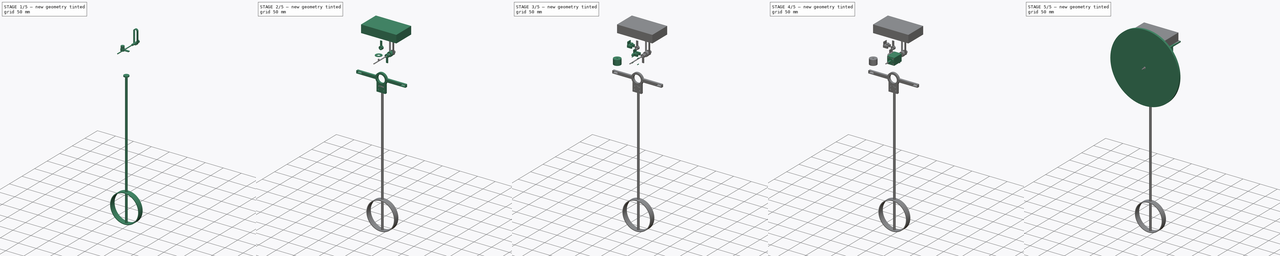
[diagram: build sequence overview — one tinted view per stage of 5, left to right]
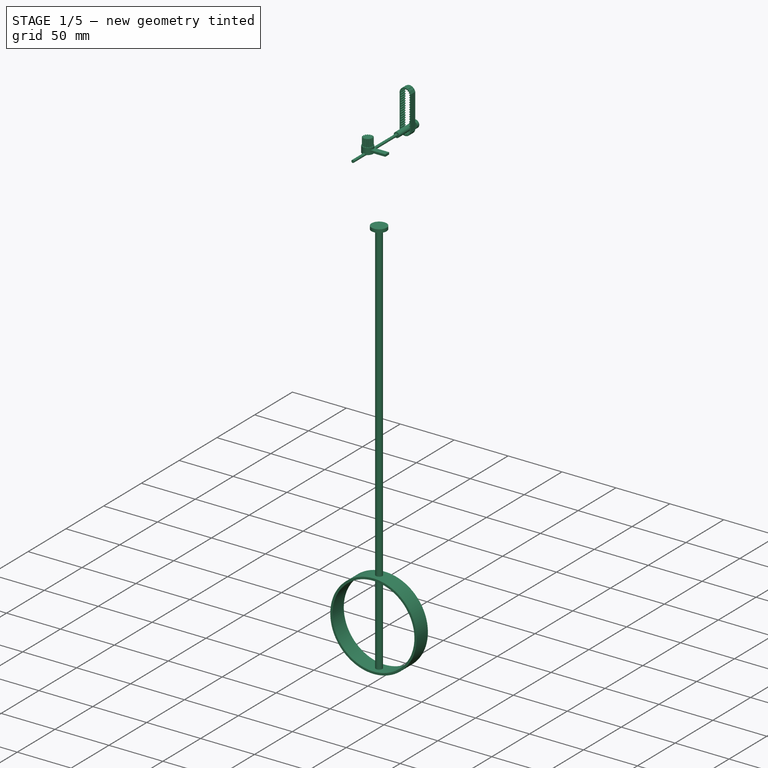
[diagram: stage 1 of 5 — iso view after this stage's code; geometry added in this stage tinted green]
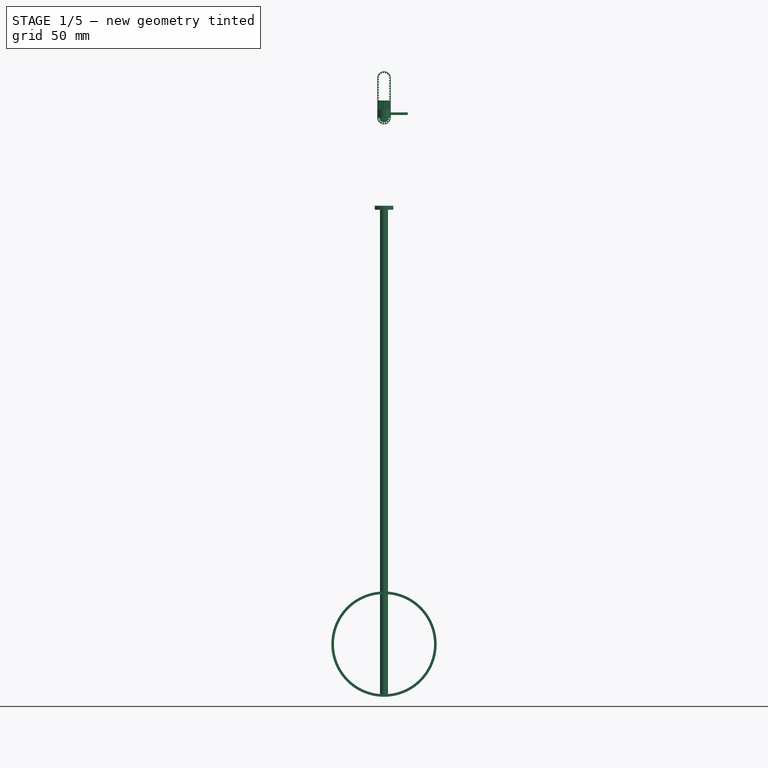
[diagram: stage 1 of 5 — front view after this stage's code; geometry added in this stage tinted green]
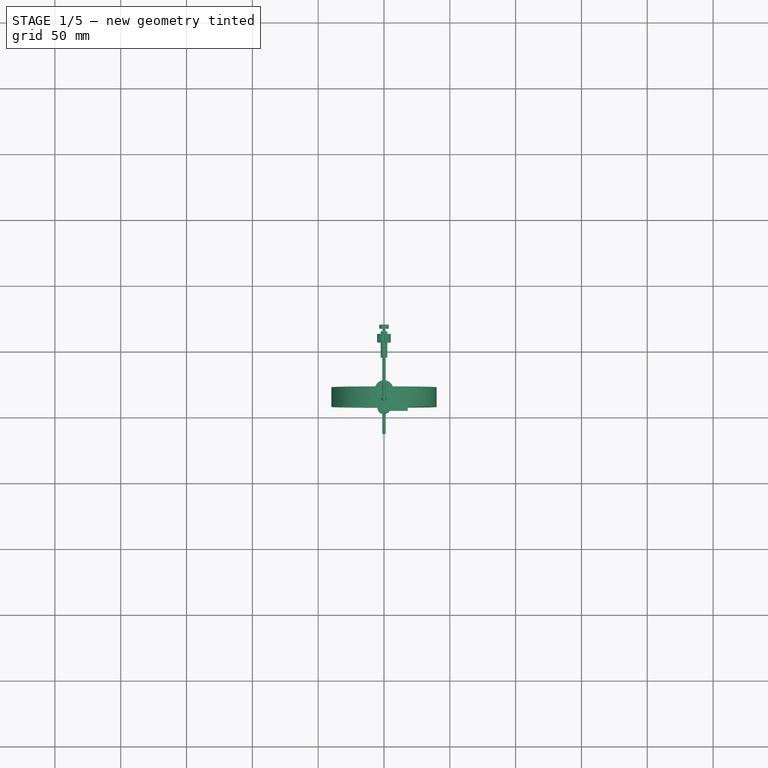
[diagram: stage 1 of 5 — top view after this stage's code; geometry added in this stage tinted green]
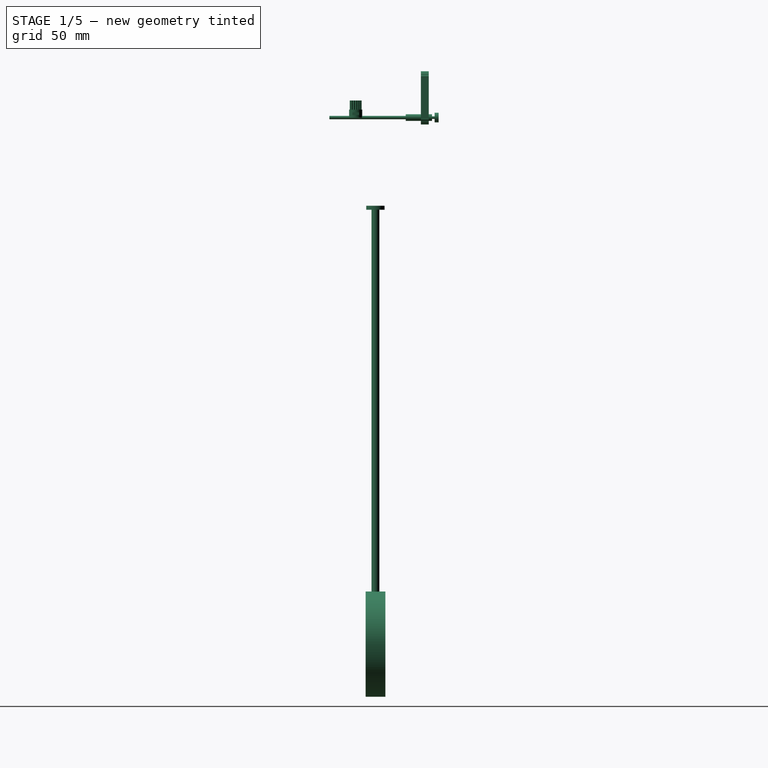
[diagram: stage 1 of 5 — right view after this stage's code; geometry added in this stage tinted green]
FCSTD DOCUMENT  (FreeCAD 0.21R33492 (Git))
Label: Clock
License: All rights reserved
LicenseURL: http://en.wikipedia.org/wiki/All_rights_reserved
objects: Part::Cylinder×24, Sketcher::SketchObject×15, Part::Extrusion×12, Part::MultiFuse×11, Part::Cut×8, Part::FeaturePython×6, Part::Box×5, App::DocumentObjectGroup×4, Part::Revolution×3, Part::Feature×1, Part::MultiCommon×1, Part::Mirroring×1
note: 87 computed .brp shape members not serialized (recipe doc carries the construction recipe); baked Part::Feature solids carry a one-line shape summary decoded from their .brp

FEATURE [Part::Box] Box002  label="Cube002"
  AttacherType = Attacher::AttachEngine3D
  Height = 2
  Length = 18
  Placement = pos=(0,-2.5,2) rot=(0,0,1;0rad)
  Width = 5
FEATURE [Part::Cylinder] Cylinder017
  Angle = 360
  AttacherType = Attacher::AttachEngine3D
  FirstAngle = 0
  Height = 6
  Radius = 5
  SecondAngle = 0
FEATURE [Part::Cylinder] Cylinder018
  Angle = 360
  AttacherType = Attacher::AttachEngine3D
  FirstAngle = 0
  Height = 8
  Radius = 2.5
  SecondAngle = 0
FEATURE [Part::Cylinder] Cylinder019
  Angle = 360
  AttacherType = Attacher::AttachEngine3D
  FirstAngle = 0
  Height = 5
  Placement = pos=(0,0,3) rot=(0,-1,0;1.5708rad)
  Radius = 1
  SecondAngle = 0
FEATURE [Part::MultiFuse] Fusion009
  Shapes = -> [Cylinder018,Cylinder019]
FEATURE [Part::FeaturePython] TimingGear  # WARN: FeaturePython — macro-defined, semantics opaque (R4)
  AttacherType = Attacher::AttachEngine3D
  Placement = pos=(0,0,6) rot=(0,0,1;0rad)
  h = 0.75
  height = 7
  offset = 0.4
  pitch = 2
  r0 = 0.555
  r1 = 1
  rs = 0.15
  teeth = 15
  type = 0
  u = 0.254
  version = 0.0.4
FEATURE [Sketcher::SketchObject] Sketch021  label="MinuteShaftShape"
  FullyConstrained = true
  Placement = pos=(0,0,0) rot=(0.57735,0.57735,0.57735;2.0944rad)
  sketch-geometry (8):
    g0: LineSegment StartX=-20 StartY=0 StartZ=0 EndX=-20 EndY=1.25 EndZ=0
    g1: LineSegment StartX=-20 StartY=1.25 StartZ=0 EndX=38 EndY=1.25 EndZ=0
    g2: LineSegment StartX=38 StartY=1.25 StartZ=0 EndX=38 EndY=2.5 EndZ=0
    g3: LineSegment StartX=38 StartY=2.5 StartZ=0 EndX=58 EndY=2.5 EndZ=0
    g4: LineSegment StartX=58 StartY=2.5 StartZ=0 EndX=58 EndY=1 EndZ=0
    g5: LineSegment StartX=58 StartY=1 StartZ=0 EndX=63 EndY=1 EndZ=0
    g6: LineSegment StartX=63 StartY=1 StartZ=0 EndX=63 EndY=0 EndZ=0
    g7: LineSegment StartX=63 StartY=0 StartZ=0 EndX=-20 EndY=0 EndZ=0
  constraints (24):
    c: PointOnObject(g0,g-1)
    c: Vertical(g0)
    c: Coincident(g1,g0)
    c: Horizontal(g1)
    c: Coincident(g2,g1)
    c: Vertical(g2)
    c: Coincident(g3,g2)
    c: Horizontal(g3)
    c: Coincident(g4,g3)
    c: Vertical(g4)
    c: Coincident(g5,g4)
    c: Horizontal(g5)
    c: Coincident(g6,g5)
    c: PointOnObject(g6,g-1)
    c: Vertical(g6)
    c: Coincident(g7,g6)
    c: Coincident(g7,g0)
    c: DistanceY(g0,g0) = 1.25
    c: DistanceY(g-1,g3) = 2.5
    c: DistanceY(g6,g5) = 1
    c: DistanceX(g3,g5) = 5
    c: DistanceX(g2,g3) = 20
    c: DistanceX(g-1,g2) = 38
    c: DistanceX(g0,g-1) = 20
FEATURE [Part::Revolution] Revolve  label="MinuteShaft"
  Angle = 360
  Axis = (0,1,0)
  Base = (0,0,0)
  FaceMakerClass = Part::FaceMakerBullseye
  Solid = true
  Source = -> Sketch021
  Symmetric = false
FEATURE [Part::FeaturePython] Tube003  label="MinuteShaftBearing"  # WARN: FeaturePython — macro-defined, semantics opaque (R4)
  AttacherType = Attacher::AttachEngine3D
  Height = 3
  InnerRadius = 1
  OuterRadius = 3.65
  Placement = pos=(0,63,0) rot=(1,0,0;1.5708rad)
FEATURE [Part::Cylinder] Cylinder040  label="PendulumShaft"
  Angle = 360
  AttacherType = Attacher::AttachEngine3D
  FirstAngle = 0
  Height = 372
  Placement = pos=(0,15,-439) rot=(0,0,1;0rad)
  Radius = 3
  SecondAngle = 0
FEATURE [Part::FeaturePython] Tube004  label="PendulumRing"  # WARN: FeaturePython — macro-defined, semantics opaque (R4)
  AttacherType = Attacher::AttachEngine3D
  Height = 15
  InnerRadius = 38
  OuterRadius = 40
  Placement = pos=(0,22.5,-400) rot=(1,0,0;1.5708rad)
FEATURE [App::DocumentObjectGroup] Group003  label="Shafts"
  Group = -> [Cut002,Cut002001,Cut002002,Cut002002007,Tube003,Revolve]
FEATURE [Sketcher::SketchObject] Sketch024  label="GT2BeltToothProfile"
  FullyConstrained = true
  Placement = pos=(0,0,0) rot=(1,0,0;1.5708rad)
  sketch-geometry (12):
    g0: LineSegment StartX=-1 StartY=0.376 StartZ=0 EndX=1 EndY=0.376 EndZ=0
    g1: ArcOfCircle CenterX=0 CenterY=-0.449 CenterZ=0 NormalX=0 NormalY=0 NormalZ=1 AngleXU=0 Radius=0.555 StartAngle=3.59519 EndAngle=5.82959
    g2: ArcOfCircle CenterX=0.4 CenterY=-0.254 CenterZ=0 NormalX=0 NormalY=0 NormalZ=1 AngleXU=0 Radius=1 StartAngle=3.2724 EndAngle=3.59519
    g3: ArcOfCircle CenterX=-0.4 CenterY=-0.254 CenterZ=0 NormalX=0 NormalY=0 NormalZ=1 AngleXU=0 Radius=1 StartAngle=5.82959 EndAngle=6.15238
    g4: LineSegment StartX=0.740175 StartY=-0.254 StartZ=0 EndX=1 EndY=-0.254 EndZ=0
    g5: LineSegment StartX=-0.740175 StartY=-0.254 StartZ=0 EndX=-1 EndY=-0.254 EndZ=0
    g6: LineSegment StartX=-1 StartY=-0.254 StartZ=0 EndX=-1 EndY=0.376 EndZ=0
    g7: LineSegment StartX=1 StartY=0.376 StartZ=0 EndX=1 EndY=-0.254 EndZ=0
    g8: GeomPoint X=0 Y=-1.004 Z=0
    g9: LineSegment StartX=-0.740175 StartY=-0.254 StartZ=0 EndX=0.740175 EndY=-0.254 EndZ=0
    g10: ArcOfCircle CenterX=-0.740175 CenterY=-0.404 CenterZ=0 NormalX=0 NormalY=0 NormalZ=1 AngleXU=0 Radius=0.15 StartAngle=0.130807 EndAngle=1.5708
    g11: ArcOfCircle CenterX=0.740175 CenterY=-0.404 CenterZ=0 NormalX=0 NormalY=0 NormalZ=1 AngleXU=0 Radius=0.15 StartAngle=1.5708 EndAngle=3.01079
  constraints (34):
    c: Horizontal(g0)
    c: PointOnObject(g1,g-2)
    c: Coincident(g2,g1)
    c: DistanceX(g-1,g2) = 0.4
    c: Radius(g2) = 1
    c: Radius(g1) = 0.555
    c: DistanceY(g2,g-1) = 0.254
    c: Coincident(g3,g1)
    c: Equal(g2,g3)
    c: Symmetric(g3,g2,g-2)
    c: Horizontal(g4)
    c: Horizontal(g5)
    c: Coincident(g6,g5)
    c: Vertical(g6)
    c: Coincident(g7,g0)
    c: Coincident(g7,g4)
    c: Vertical(g7)
    c: Coincident(g0,g6)
    c: PointOnObject(g8,g1)
    c: PointOnObject(g8,g-2)
    c: DistanceY(g8,g0) = 1.38
    c: DistanceX(g0,g-1) = 1
    c: DistanceX(g-1,g0) = 1
    c: DistanceY(g8,g4) = 0.75
    c: Horizontal(g9)
    c: PointOnObject(g3,g9)
    c: Tangent(g5,g10) = -1.5708
    c: Tangent(g2,g10) = 1.5708
    c: Coincident(g9,g5)
    c: Tangent(g3,g11) = 1.5708
    c: Tangent(g4,g11) = 1.5708
    c: Coincident(g9,g4)
    c: Equal(g10,g11)
    c: Radius(g10) = 0.15
FEATURE [Part::Extrusion] Extrude016  label="GT2BeltTooth"
  Base = -> Sketch024
  Dir = (0,-1,2e-16)
  DirMode = 2
  FaceMakerClass = Part::FaceMakerBullseye
  LengthFwd = 6
  LengthRev = 0
  Solid = true
  Symmetric = false
FEATURE [Sketcher::SketchObject] Sketch001  label="GT2BeltPath"
  FullyConstrained = true
  Placement = pos=(0,0,0) rot=(1,0,0;1.5708rad)
  sketch-geometry (4):
    g0: ArcOfCircle CenterX=0 CenterY=0 CenterZ=0 NormalX=0 NormalY=0 NormalZ=1 AngleXU=0 Radius=4.77 StartAngle=0 EndAngle=3.14159
    g1: LineSegment StartX=-4.77 StartY=6e-16 StartZ=0 EndX=-4.77 EndY=-30 EndZ=0
    g2: LineSegment StartX=4.77 StartY=0 StartZ=0 EndX=4.77 EndY=-30 EndZ=0
    g3: ArcOfCircle CenterX=-2e-16 CenterY=-30 CenterZ=0 NormalX=0 NormalY=0 NormalZ=1 AngleXU=0 Radius=4.77 StartAngle=3.14159 EndAngle=6.28319
  constraints (13):
    c: Coincident(g0,g-1)
    c: PointOnObject(g0,g-1)
    c: PointOnObject(g0,g-1)
    c: Coincident(g1,g0)
    c: Vertical(g1)
    c: Coincident(g2,g0)
    c: Vertical(g2)
    c: Coincident(g3,g1)
    c: Coincident(g3,g2)
    c: Horizontal(g1,g3)
    c: Horizontal(g3,g2)
    c: DistanceY(g3,g0) = 30
    c: Radius(g0) = 4.77
FEATURE [Part::FeaturePython] PathArray  label="GT2Belt"  # WARN: FeaturePython — macro-defined, semantics opaque (R4)
  Align = true
  AlignMode = 2
  Base = -> Extrude016
  Count = 45
  EndOffset = 0
  ExtraTranslation = (0,0,0)
  ForceVertical = false
  PathObject = -> Sketch001
  Placement = pos=(0,49.5,30) rot=(0,0,1;0rad)
  StartOffset = 0
  TangentVector = (1,0,0)
  VerticalVector = (0,0,1)
FEATURE [Part::Cylinder] Cylinder041  label="PendulumClampPlate"
  Angle = 360
  AttacherType = Attacher::AttachEngine3D
  FirstAngle = 0
  Height = 3
  Placement = pos=(0,15,-70) rot=(0,0,1;0rad)
  Radius = 7
  SecondAngle = 0
FEATURE [Part::MultiFuse] Fusion  label="Pendulum001"
  Shapes = -> [Tube004,Cylinder040,Cylinder041]
FEATURE [App::DocumentObjectGroup] Group  label="Pendulum"
  Group = -> [Cut002002008,Cylinder039,Tube002,Cut002002009,Fusion]
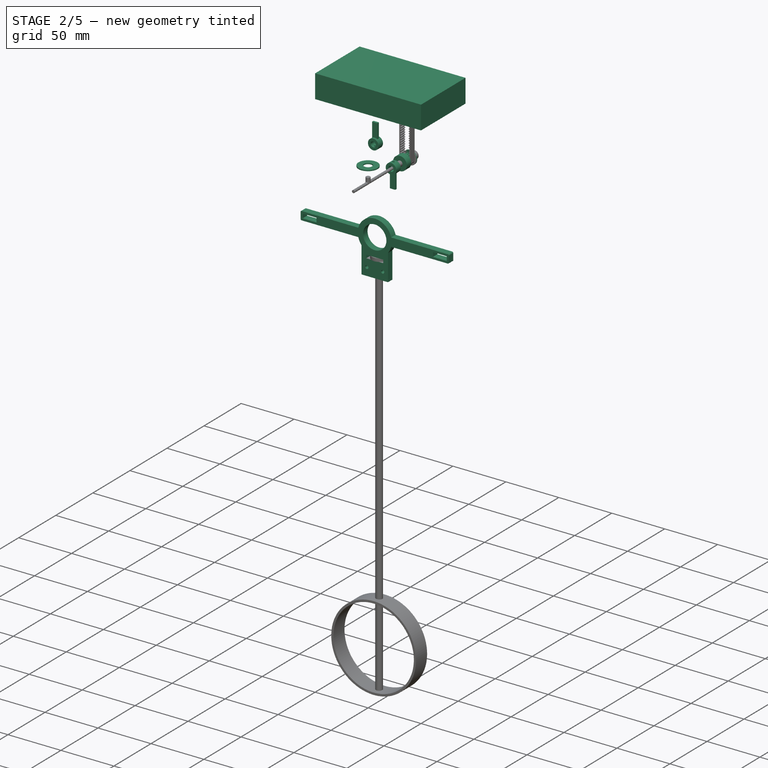
[diagram: stage 2 of 5 — iso view after this stage's code; geometry added in this stage tinted green]
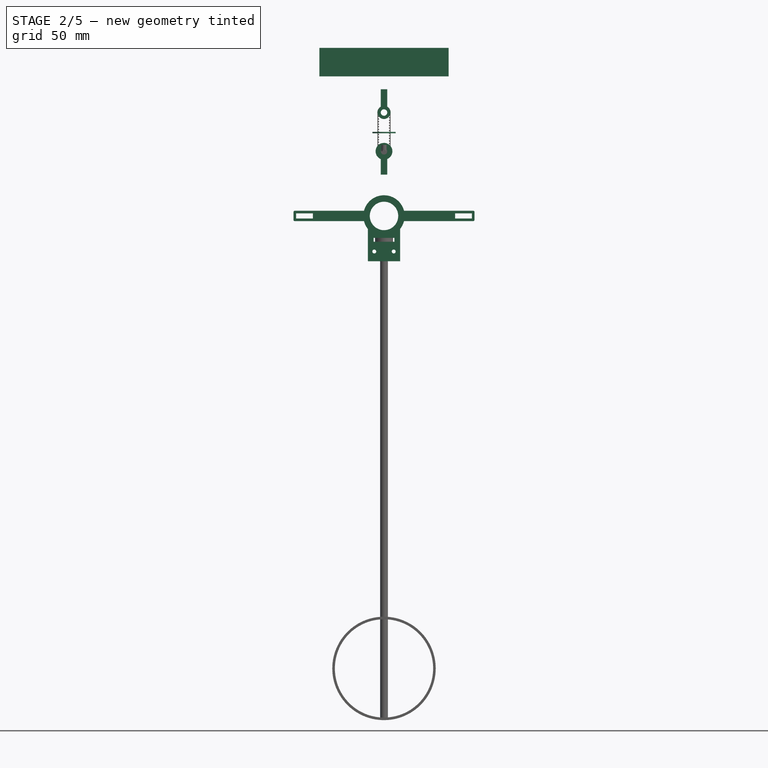
[diagram: stage 2 of 5 — front view after this stage's code; geometry added in this stage tinted green]
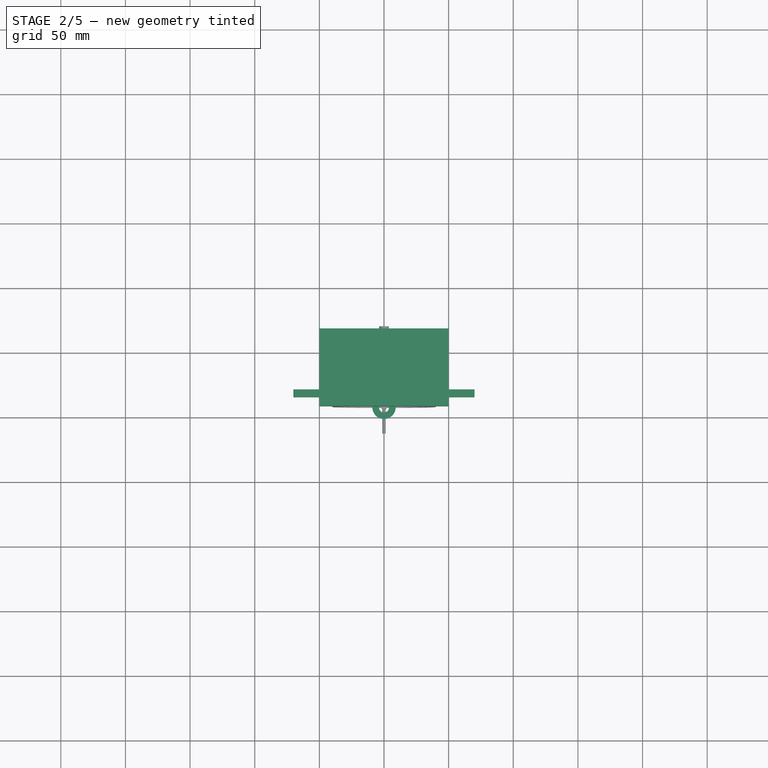
[diagram: stage 2 of 5 — top view after this stage's code; geometry added in this stage tinted green]
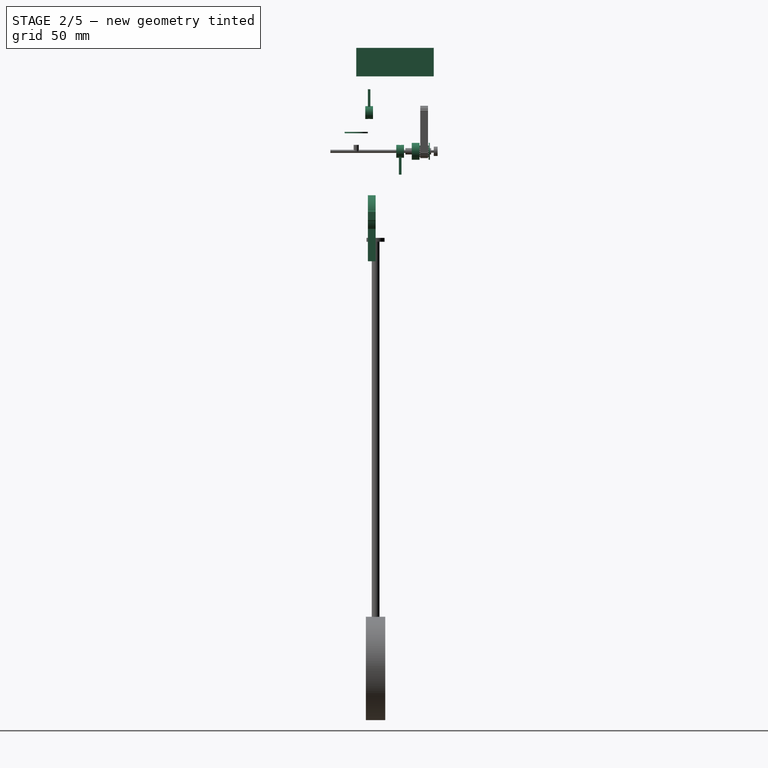
[diagram: stage 2 of 5 — right view after this stage's code; geometry added in this stage tinted green]
FEATURE [Part::Cylinder] Cylinder014
  Angle = 360
  AttacherType = Attacher::AttachEngine3D
  FirstAngle = 0
  Height = 6
  Radius = 6.5
  SecondAngle = 0
FEATURE [Part::Cylinder] Cylinder015
  Angle = 360
  AttacherType = Attacher::AttachEngine3D
  FirstAngle = 0
  Height = 1
  Placement = pos=(0,0,13) rot=(0,0,1;0rad)
  Radius = 6.5
  SecondAngle = 0
FEATURE [Part::Cylinder] Cylinder016
  Angle = 360
  AttacherType = Attacher::AttachEngine3D
  FirstAngle = 0
  Height = 14
  Radius = 2.5
  SecondAngle = 0
FEATURE [Part::MultiFuse] Fusion008
  Shapes = -> [Box002,Cylinder017]
FEATURE [Part::Cut] Cut002002  label="LimitSwitchPinHour"
  Base = -> Fusion008
  Placement = pos=(0,37,0) rot=(0.57735,0.57735,-0.57735;2.0944rad)
  Tool = -> Fusion009
FEATURE [Part::Cut] Cut002002007  label="LimitSwitchPinMinute"
  Base = -> Fusion008
  Placement = pos=(0,13,30) rot=(0.57735,-0.57735,0.57735;2.0944rad)
  Tool = -> Fusion009
FEATURE [Part::MultiFuse] Fusion006
  Shapes = -> [TimingGear,Cylinder014,Cylinder015]
FEATURE [Part::Cut] Cut002  label="TimingPulleyHour"
  Base = -> Fusion006
  Placement = pos=(0,43,0) rot=(-1,0,0;1.5708rad)
  Tool = -> Cylinder016
FEATURE [Part::Cylinder] Cylinder033
  Angle = 360
  AttacherType = Attacher::AttachEngine3D
  FirstAngle = 0
  Height = 5
  Radius = 2
  SecondAngle = 0
FEATURE [Part::FeaturePython] Tube  # WARN: FeaturePython — macro-defined, semantics opaque (R4)
  AttacherType = Attacher::AttachEngine3D
  Height = 1
  InnerRadius = 3.85
  OuterRadius = 9
  Placement = pos=(0,0,14) rot=(0,0,1;0rad)
FEATURE [Part::Box] Box003  label="PCB"
  AttacherType = Attacher::AttachEngine3D
  Height = 22
  Length = 100
  Placement = pos=(-50,0,58) rot=(0,0,1;0rad)
  Width = 60
FEATURE [Sketcher::SketchObject] Sketch023  label="PendulumClampShape"
  FullyConstrained = true
  Placement = pos=(0,21,-50) rot=(1,0,0;1.5708rad)
  sketch-geometry (37):
    g0: Circle CenterX=0 CenterY=0 CenterZ=0 NormalX=0 NormalY=0 NormalZ=1 AngleXU=0 Radius=11
    g1: ArcOfCircle CenterX=0 CenterY=0 CenterZ=0 NormalX=0 NormalY=0 NormalZ=1 AngleXU=0 Radius=16 StartAngle=3.39427 EndAngle=3.81572
    g2: LineSegment StartX=-15.4919 StartY=4 StartZ=0 EndX=-69 EndY=4 EndZ=0
    g3: LineSegment StartX=-70 StartY=3 StartZ=0 EndX=-70 EndY=-3 EndZ=0
    g4: LineSegment StartX=-69 StartY=-4 StartZ=0 EndX=-15.4919 EndY=-4 EndZ=0
    g5: LineSegment StartX=-68 StartY=2 StartZ=0 EndX=-55 EndY=2 EndZ=0
    g6: LineSegment StartX=-55 StartY=2 StartZ=0 EndX=-55 EndY=-2 EndZ=0
    g7: LineSegment StartX=-55 StartY=-2 StartZ=0 EndX=-68 EndY=-2 EndZ=0
    g8: LineSegment StartX=-68 StartY=-2 StartZ=0 EndX=-68 EndY=2 EndZ=0
    g9: ArcOfCircle CenterX=-69 CenterY=3 CenterZ=0 NormalX=0 NormalY=0 NormalZ=1 AngleXU=0 Radius=1 StartAngle=1.5708 EndAngle=3.14159
    g10: GeomPoint X=-70 Y=4 Z=0
    g11: ArcOfCircle CenterX=-69 CenterY=-3 CenterZ=0 NormalX=0 NormalY=0 NormalZ=1 AngleXU=0 Radius=1 StartAngle=3.14159 EndAngle=4.71239
    g12: GeomPoint X=-70 Y=-4 Z=0
    g13: LineSegment StartX=15.4919 StartY=4 StartZ=0 EndX=69 EndY=4 EndZ=0
    g14: LineSegment StartX=15.4919 StartY=-4 StartZ=0 EndX=69 EndY=-4 EndZ=0
    g15: ArcOfCircle CenterX=0 CenterY=0 CenterZ=0 NormalX=0 NormalY=0 NormalZ=1 AngleXU=0 Radius=16 StartAngle=0.25268 EndAngle=2.88891
    g16: ArcOfCircle CenterX=0 CenterY=0 CenterZ=0 NormalX=0 NormalY=0 NormalZ=1 AngleXU=0 Radius=16 StartAngle=5.60905 EndAngle=6.03051
    g17: LineSegment StartX=70 StartY=-3 StartZ=0 EndX=70 EndY=3 EndZ=0
    g18: LineSegment StartX=55 StartY=2 StartZ=0 EndX=55 EndY=-2 EndZ=0
    g19: LineSegment StartX=55 StartY=-2 StartZ=0 EndX=68 EndY=-2 EndZ=0
    g20: LineSegment StartX=68 StartY=-2 StartZ=0 EndX=68 EndY=2 EndZ=0
    g21: LineSegment StartX=55 StartY=2 StartZ=0 EndX=68 EndY=2 EndZ=0
    g22: ArcOfCircle CenterX=69 CenterY=3 CenterZ=0 NormalX=0 NormalY=0 NormalZ=1 AngleXU=0 Radius=1 StartAngle=0 EndAngle=1.5708
    g23: GeomPoint X=70 Y=4 Z=0
    g24: ArcOfCircle CenterX=69 CenterY=-3 CenterZ=0 NormalX=0 NormalY=0 NormalZ=1 AngleXU=0 Radius=1 StartAngle=4.71239 EndAngle=6.28319
    g25: GeomPoint X=70 Y=-4 Z=0
    g26: LineSegment StartX=12.5 StartY=-35 StartZ=0 EndX=12.5 EndY=-9.98749 EndZ=0
    g27: LineSegment StartX=-12.5 StartY=-35 StartZ=0 EndX=-12.5 EndY=-9.98749 EndZ=0
    g28: LineSegment StartX=-12.5 StartY=-35 StartZ=0 EndX=12.5 EndY=-35 EndZ=0
    g29: LineSegment StartX=-3 StartY=-35 StartZ=0 EndX=-3 EndY=-20 EndZ=0
    g30: LineSegment StartX=3 StartY=-20 StartZ=0 EndX=3 EndY=-35 EndZ=0
    g31: LineSegment StartX=-8 StartY=-20 StartZ=0 EndX=-8 EndY=-16.99 EndZ=0
    g32: LineSegment StartX=-8 StartY=-16.99 StartZ=0 EndX=8 EndY=-16.99 EndZ=0
    g33: LineSegment StartX=8 StartY=-16.99 StartZ=0 EndX=8 EndY=-20 EndZ=0
    g34: Circle CenterX=-7.5 CenterY=-27.5 CenterZ=0 NormalX=0 NormalY=0 NormalZ=1 AngleXU=0 Radius=1.5
    g35: Circle CenterX=7.5 CenterY=-27.5 CenterZ=0 NormalX=0 NormalY=0 NormalZ=1 AngleXU=0 Radius=1.5
    g36: LineSegment StartX=-8 StartY=-20 StartZ=0 EndX=8 EndY=-20 EndZ=0
  constraints (97):
    c: Diameter(g0) = 22
    c: Symmetric(g1,g16,g-2)
    c: Coincident(g0,g-1)
    c: Coincident(g1,g0)
    c: Horizontal(g2)
    c: Vertical(g3)
    c: Coincident(g4,g1)
    c: Horizontal(g4)
    c: Distance(g12,g10) = 8
    c: DistanceX(g10,g0) = 70
    c: Coincident(g5,g6)
    c: Coincident(g6,g7)
    c: Coincident(g7,g8)
    c: Coincident(g8,g5)
    c: Horizontal(g5)
    c: Horizontal(g7)
    c: Vertical(g6)
    c: Distance(g7) = 13
    c: Distance(g6) = 4
    c: Symmetric(g5,g7,g-1)
    c: DistanceX(g10,g5) = 2
    c: PointOnObject(g10,g3)
    c: PointOnObject(g10,g2)
    c: Tangent(g3,g9) = -1.5708
    c: Tangent(g2,g9) = -1.5708
    c: PointOnObject(g12,g3)
    c: PointOnObject(g12,g4)
    c: Tangent(g3,g11) = -1.5708
    c: Tangent(g4,g11) = -1.5708
    c: Equal(g9,g11)
    c: Diameter(g11) = 2
    c: Horizontal(g13)
    c: Horizontal(g14)
    c: Coincident(g15,g0)
    c: Coincident(g15,g2)
    c: Coincident(g15,g13)
    c: Coincident(g16,g0)
    c: Coincident(g16,g14)
    c: Diameter(g15) = 32
    c: Vertical(g17)
    c: Vertical(g18)
    c: Coincident(g19,g18)
    c: Horizontal(g19)
    c: Coincident(g20,g19)
    c: Coincident(g21,g18)
    c: Horizontal(g21)
    c: Coincident(g20,g21)
    c: DistanceX(g0,g23) = 70
    c: Equal(g7,g19)
    c: Equal(g6,g18)
    c: Symmetric(g19,g20,g-1)
    c: DistanceX(g20,g23) = 2
    c: Symmetric(g1,g2,g-1)
    c: Symmetric(g14,g13,g-1)
    c: Distance(g25,g23) = 8
    c: PointOnObject(g23,g13)
    c: PointOnObject(g23,g17)
    c: Tangent(g13,g22) = 1.5708
    c: Tangent(g17,g22) = -1.5708
    c: PointOnObject(g25,g14)
    c: PointOnObject(g25,g17)
    c: Tangent(g14,g24) = -1.5708
    c: Tangent(g17,g24) = -1.5708
    c: Equal(g22,g11)
    c: Equal(g11,g24)
    c: Coincident(g26,g16)
    c: Vertical(g26)
    c: Coincident(g27,g1)
    c: Vertical(g27)
    c: Coincident(g28,g27)
    c: Coincident(g28,g26)
    c: Horizontal(g28)
    c: Distance(g28) = 25
    c: PointOnObject(g29,g28)
    c: Vertical(g29)
    c: Vertical(g30)
    c: DistanceX(g29,g30) = 6
    c: DistanceY(g26,g30) = 15
    c: DistanceY(g27,g0) = 35
    c: Coincident(g32,g31)
    c: Horizontal(g32)
    c: Coincident(g33,g32)
    c: Vertical(g33)
    c: Vertical(g31)
    c: Distance(g32) = 16
    c: Distance(g33) = 3.01
    c: PointOnObject(g30,g28)
    c: Symmetric(g29,g30,g-2)
    c: Symmetric(g34,g35,g-2)
    c: Equal(g34,g35)
    c: Diameter(g35) = 3
    c: DistanceX(g34,g35) = 15
    c: DistanceY(g26,g35) = 7.5
    c: Coincident(g36,g31)
    c: Coincident(g36,g33)
    c: Symmetric(g36,g36,g-2)
    c: PointOnObject(g29,g36)
FEATURE [Part::Extrusion] Extrude015  label="PendulumClamp"
  Base = -> Sketch023
  Dir = (0,-1,2e-16)
  DirMode = 2
  FaceMakerClass = Part::FaceMakerBullseye
  LengthFwd = 6
  LengthRev = 0
  Solid = true
  Symmetric = false
FEATURE [Part::Box] Box004  label="PendulumClampSlot"
  AttacherType = Attacher::AttachEngine3D
  Height = 15
  Length = 6
  Placement = pos=(-3,15,-85) rot=(0,0,1;0rad)
  Width = 2.75
FEATURE [App::DocumentObjectGroup] Group001  label="DialPlate"
  Group = -> [Extrude014,Revolve002,Revolve001]
FEATURE [App::DocumentObjectGroup] Group002  label="Electronics"
  Group = -> [Cut002002004,Box003,Cut,Cut001,Part__Mirroring,Fusion021]
FEATURE [Part::Cut] Cut002002009  label="PendulumClampFront"
  Base = -> Extrude015
  Placement = pos=(0,30,0) rot=(0,0,1;3.14159rad)
  Tool = -> Box004
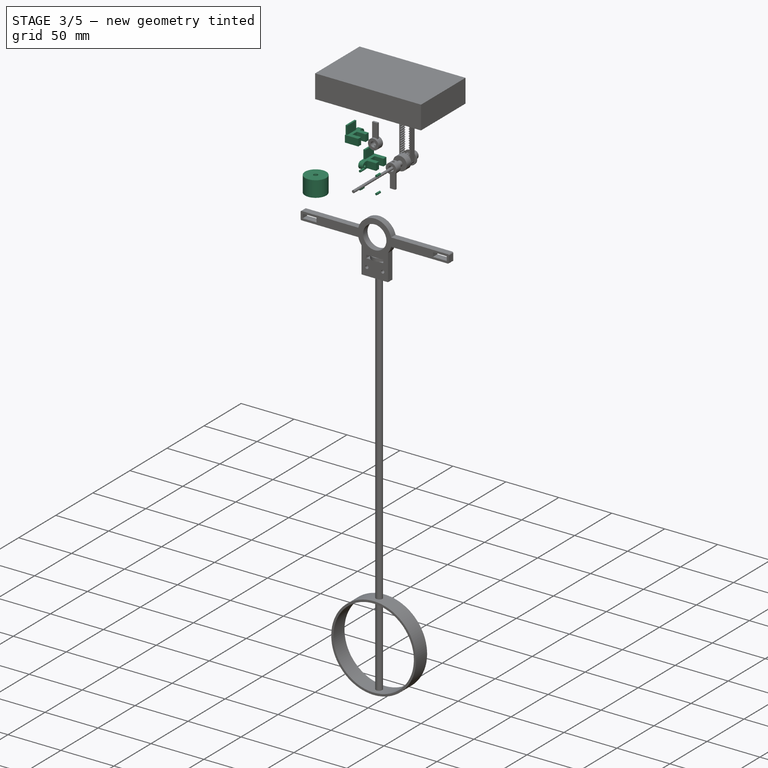
[diagram: stage 3 of 5 — iso view after this stage's code; geometry added in this stage tinted green]
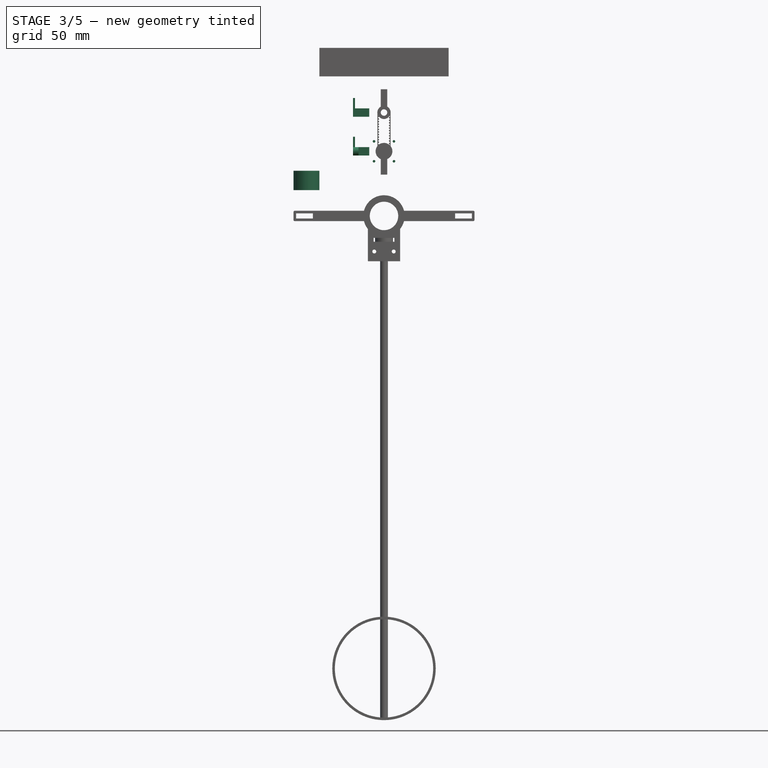
[diagram: stage 3 of 5 — front view after this stage's code; geometry added in this stage tinted green]
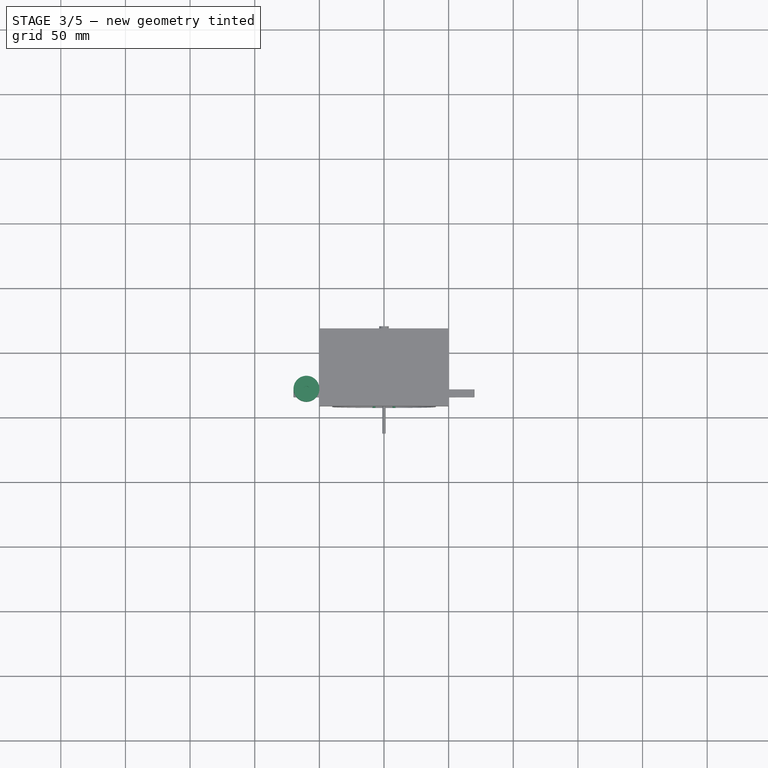
[diagram: stage 3 of 5 — top view after this stage's code; geometry added in this stage tinted green]
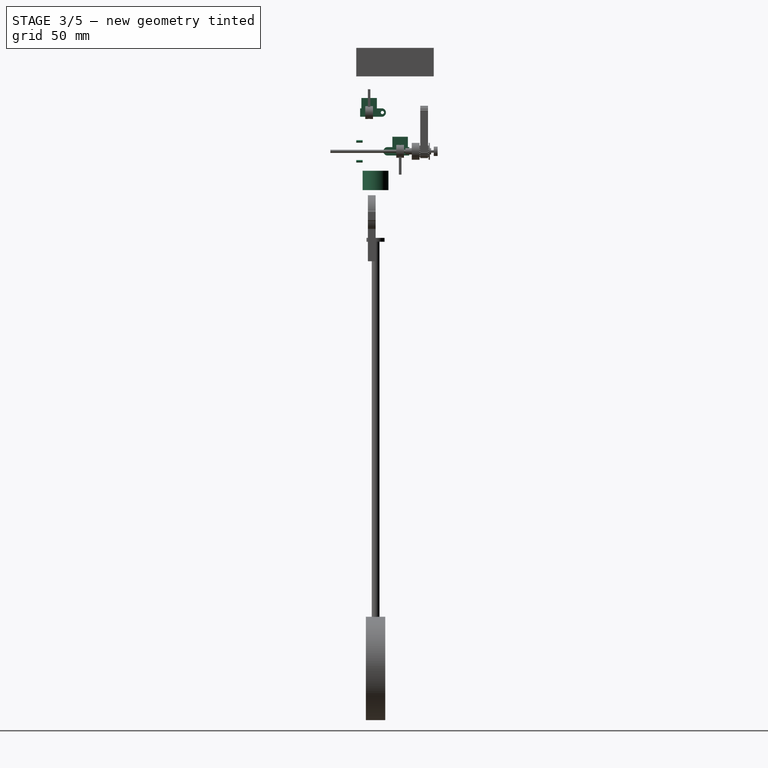
[diagram: stage 3 of 5 — right view after this stage's code; geometry added in this stage tinted green]
FEATURE [Part::Cylinder] Cylinder008
  Angle = 360
  AttacherType = Attacher::AttachEngine3D
  FirstAngle = 0
  Height = 5
  Placement = pos=(-7.7,0,-7.7) rot=(-1,0,0;1.5708rad)
  Radius = 1
  SecondAngle = 0
FEATURE [Part::Cylinder] Cylinder009
  Angle = 360
  AttacherType = Attacher::AttachEngine3D
  FirstAngle = 0
  Height = 5
  Placement = pos=(-7.7,0,7.7) rot=(-1,0,0;1.5708rad)
  Radius = 1
  SecondAngle = 0
FEATURE [Part::Cylinder] Cylinder010
  Angle = 360
  AttacherType = Attacher::AttachEngine3D
  FirstAngle = 0
  Height = 5
  Placement = pos=(7.7,0,-7.7) rot=(-1,0,0;1.5708rad)
  Radius = 1
  SecondAngle = 0
FEATURE [Part::Cylinder] Cylinder011
  Angle = 360
  AttacherType = Attacher::AttachEngine3D
  FirstAngle = 0
  Height = 5
  Placement = pos=(7.7,0,7.7) rot=(-1,0,0;1.5708rad)
  Radius = 1
  SecondAngle = 0
FEATURE [Part::MultiFuse] Fusion004
  Shapes = -> [Cylinder008,Cylinder009,Cylinder010,Cylinder011]
FEATURE [Sketcher::SketchObject] Sketch006  label="OpticalSensorOnlyOneTabSideViewShape"
  FullyConstrained = true
  Placement = pos=(0,0,0) rot=(1,0,0;1.5708rad)
  sketch-geometry (10):
    g0: LineSegment StartX=-7 StartY=0 StartZ=0 EndX=13 EndY=0 EndZ=0
    g1: LineSegment StartX=13 StartY=0 StartZ=0 EndX=13 EndY=2.7 EndZ=0
    g2: LineSegment StartX=13 StartY=2.7 StartZ=0 EndX=7 EndY=2.7 EndZ=0
    g3: LineSegment StartX=7 StartY=2.7 StartZ=0 EndX=7 EndY=11 EndZ=0
    g4: LineSegment StartX=7 StartY=11 StartZ=0 EndX=3 EndY=11 EndZ=0
    g5: LineSegment StartX=3 StartY=11 StartZ=0 EndX=3 EndY=2.7 EndZ=0
    g6: LineSegment StartX=3 StartY=2.7 StartZ=0 EndX=-3 EndY=2.7 EndZ=0
    g7: LineSegment StartX=-3 StartY=2.7 StartZ=0 EndX=-3 EndY=11 EndZ=0
    g8: LineSegment StartX=-3 StartY=11 StartZ=0 EndX=-7 EndY=11 EndZ=0
    g9: LineSegment StartX=-7 StartY=11 StartZ=0 EndX=-7 EndY=0 EndZ=0
  constraints (30):
    c: PointOnObject(g0,g-1)
    c: Coincident(g1,g0)
    c: Vertical(g1)
    c: Coincident(g2,g1)
    c: Horizontal(g2)
    c: Coincident(g3,g2)
    c: Vertical(g3)
    c: Coincident(g4,g3)
    c: Horizontal(g4)
    c: Coincident(g5,g4)
    c: Vertical(g5)
    c: Coincident(g6,g5)
    c: Coincident(g7,g6)
    c: Vertical(g7)
    c: Coincident(g8,g7)
    c: Horizontal(g8)
    c: Coincident(g9,g8)
    c: Vertical(g9)
    c: Horizontal(g5,g2)
    c: Distance(g1) = 2.7
    c: DistanceY(g-1,g3) = 11
    c: Horizontal(g7,g4)
    c: Equal(g8,g4)
    c: Distance(g8) = 4
    c: Distance(g6) = 6
    c: Symmetric(g6,g5,g-2)
    c: DistanceX(g-1,g0) = 13
    c: Horizontal(g0)
    c: Coincident(g9,g0)
    c: DistanceX(g0,g0) = 20
FEATURE [Part::Extrusion] Extrude003  label="OpticalSensorOnlyOneTagSideView"
  Base = -> Sketch006
  Dir = (0,-1,2e-16)
  DirMode = 2
  FaceMakerClass = Part::FaceMakerBullseye
  LengthFwd = 6.6
  LengthRev = 0
  Solid = true
  Symmetric = true
FEATURE [Sketcher::SketchObject] Sketch007  label="OpticalSensorOnlyOneTabTopViewShape"
  FullyConstrained = true
  sketch-geometry (5):
    g0: LineSegment StartX=-7 StartY=3.25 StartZ=0 EndX=9.75 EndY=3.25 EndZ=0
    g1: ArcOfCircle CenterX=9.75 CenterY=1e-16 CenterZ=0 NormalX=0 NormalY=0 NormalZ=1 AngleXU=0 Radius=3.25 StartAngle=4.71239 EndAngle=7.85398
    g2: LineSegment StartX=-7 StartY=-3.25 StartZ=0 EndX=9.75 EndY=-3.25 EndZ=0
    g3: LineSegment StartX=-7 StartY=-3.25 StartZ=0 EndX=-7 EndY=3.25 EndZ=0
    g4: Circle CenterX=10.25 CenterY=0 CenterZ=0 NormalX=0 NormalY=0 NormalZ=1 AngleXU=0 Radius=1.25
  constraints (16):
    c: Horizontal(g0)
    c: Coincident(g1,g0)
    c: Vertical(g0,g1)
    c: DistanceY(g1,g0) = 6.5
    c: Coincident(g2,g1)
    c: Symmetric(g0,g1,g-1)
    c: Vertical(g3)
    c: DistanceX(g3,g-1) = 7
    c: DistanceX(g-1,g0) = 9.75
    c: Coincident(g0,g3)
    c: Coincident(g2,g3)
    c: Horizontal(g2)
    c: DistanceX(g0,g1) = 16.75
    c: PointOnObject(g4,g-1)
    c: Diameter(g4) = 2.5
    c: DistanceX(g-1,g4) = 10.25
FEATURE [Part::Extrusion] Extrude004  label="OpticalSensorOnlyOneTabTopView"
  Base = -> Sketch007
  Dir = (0,0,1)
  DirMode = 2
  FaceMakerClass = Part::FaceMakerBullseye
  LengthFwd = 11
  LengthRev = 0
  Solid = true
  Symmetric = false
FEATURE [Part::MultiCommon] Common  label="OpticalSensorOnlyOneTab"
  Placement = pos=(0,11.25,1.6) rot=(0,0,1;0rad)
  Shapes = -> [Extrude003,Extrude004]
FEATURE [Sketcher::SketchObject] Sketch009  label="OpticalSensorPcbOnlyOneTabShape"
  FullyConstrained = true
  sketch-geometry (9):
    g0: LineSegment StartX=-6 StartY=0 StartZ=0 EndX=6 EndY=0 EndZ=0
    g1: LineSegment StartX=6 StartY=0 StartZ=0 EndX=6 EndY=8 EndZ=0
    g2: LineSegment StartX=-6 StartY=0 StartZ=0 EndX=-6 EndY=8 EndZ=0
    g3: LineSegment StartX=-7 StartY=14.5 StartZ=0 EndX=9.75 EndY=14.5 EndZ=0
    g4: LineSegment StartX=6 StartY=8 StartZ=0 EndX=9.75 EndY=8 EndZ=0
    g5: LineSegment StartX=-6 StartY=8 StartZ=0 EndX=-7 EndY=8 EndZ=0
    g6: ArcOfCircle CenterX=9.75 CenterY=11.25 CenterZ=0 NormalX=0 NormalY=0 NormalZ=1 AngleXU=0 Radius=3.25 StartAngle=4.71239 EndAngle=7.85398
    g7: LineSegment StartX=-7 StartY=8 StartZ=0 EndX=-7 EndY=14.5 EndZ=0
    g8: Circle CenterX=10.25 CenterY=11.25 CenterZ=0 NormalX=0 NormalY=0 NormalZ=1 AngleXU=0 Radius=1.25
  constraints (27):
    c: PointOnObject(g0,g-1)
    c: Symmetric(g0,g0,g-1)
    c: Coincident(g1,g0)
    c: Vertical(g1)
    c: Coincident(g2,g0)
    c: Vertical(g2)
    c: Horizontal(g3)
    c: Coincident(g4,g1)
    c: Horizontal(g4)
    c: Coincident(g5,g2)
    c: Horizontal(g5)
    c: Coincident(g6,g4)
    c: Coincident(g6,g3)
    c: Vertical(g3,g6)
    c: Vertical(g6,g4)
    c: DistanceY(g4,g3) = 6.5
    c: Distance(g0) = 12
    c: Distance(g1) = 8
    c: DistanceX(g5,g5) = 1
    c: Coincident(g7,g5)
    c: Coincident(g7,g3)
    c: Vertical(g7)
    c: Distance(g3) = 16.75
    c: Horizontal(g2,g1)
    c: Diameter(g8) = 2.5
    c: Horizontal(g6,g8)
    c: DistanceX(g6,g8) = 0.5
FEATURE [Part::Extrusion] Extrude006  label="OpticalSensorPcbOnlyOneTab"
  Base = -> Sketch009
  Dir = (0,0,1)
  DirMode = 2
  FaceMakerClass = Part::FaceMakerBullseye
  LengthFwd = 1.6
  LengthRev = 0
  Solid = true
  Symmetric = false
FEATURE [Part::MultiFuse] Fusion021  label="HourHomeSwitch"
  Placement = pos=(-24,34,11.25) rot=(0.57735,-0.57735,0.57735;4.18879rad)
  Shapes = -> [Common,Extrude006]
FEATURE [Part::MultiFuse] Fusion022  label="NotMirrowedHouerLimitSwitch2"
  Shapes = -> [Common,Extrude006]
FEATURE [Part::Mirroring] Part__Mirroring  label="MinuteHomeSwitch"
  Base = (0,0,0)
  Normal = (0,1,0)
  Placement = pos=(-24,10,41.25) rot=(0.57735,0.57735,0.57735;2.0944rad)
  Source = -> Fusion022
FEATURE [Part::Cylinder] Cylinder032
  Angle = 360
  AttacherType = Attacher::AttachEngine3D
  FirstAngle = 0
  Height = 15
  Radius = 10
  SecondAngle = 0
FEATURE [Part::MultiFuse] Fusion014
  Shapes = -> [Tube,Cylinder033]
FEATURE [Part::Cut] Cut002002004  label="Electromagnet"
  Base = -> Cylinder032
  Placement = pos=(-60,15,-15) rot=(1,0,0;3.14159rad)
  Tool = -> Fusion014
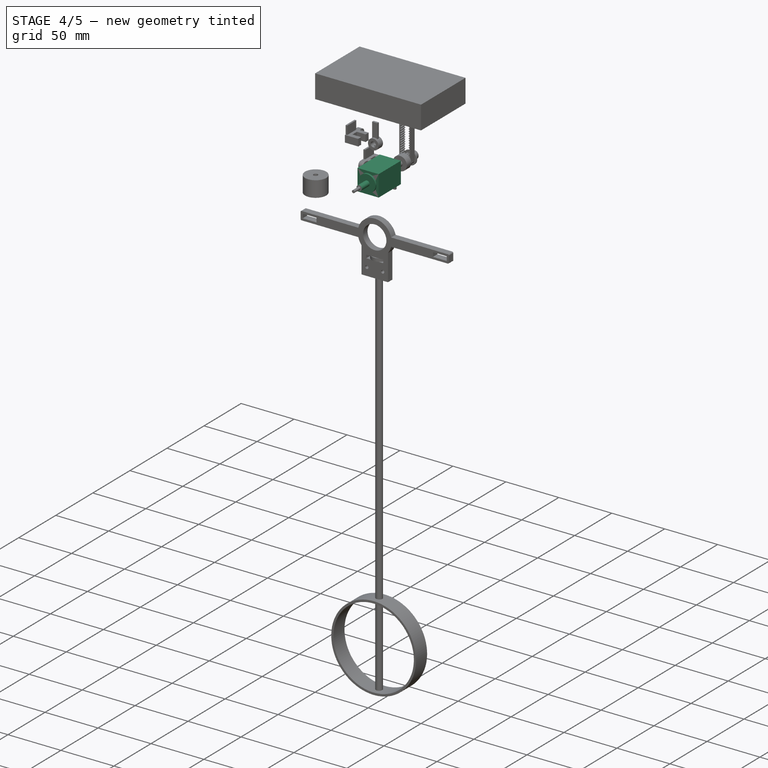
[diagram: stage 4 of 5 — iso view after this stage's code; geometry added in this stage tinted green]
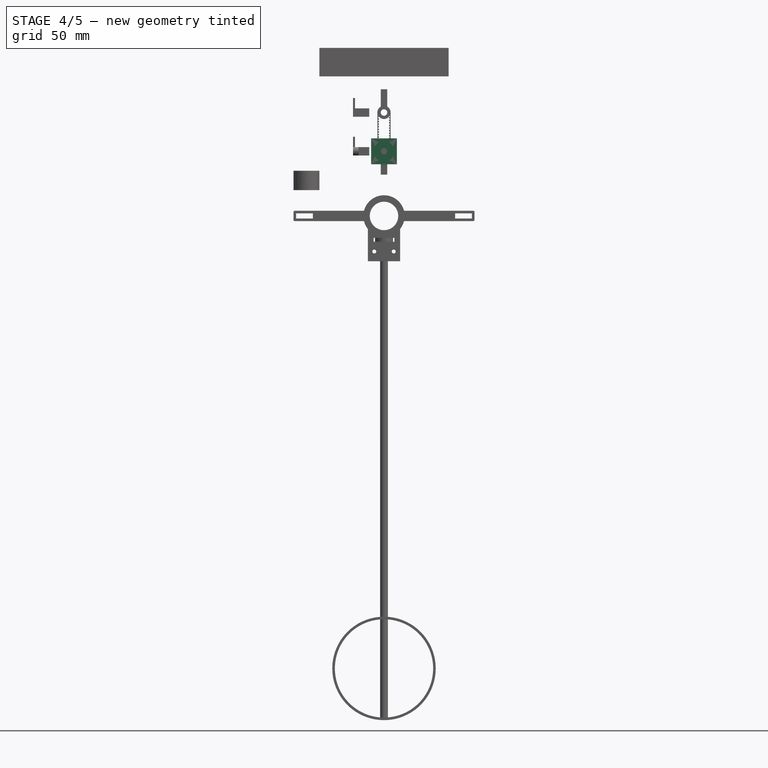
[diagram: stage 4 of 5 — front view after this stage's code; geometry added in this stage tinted green]
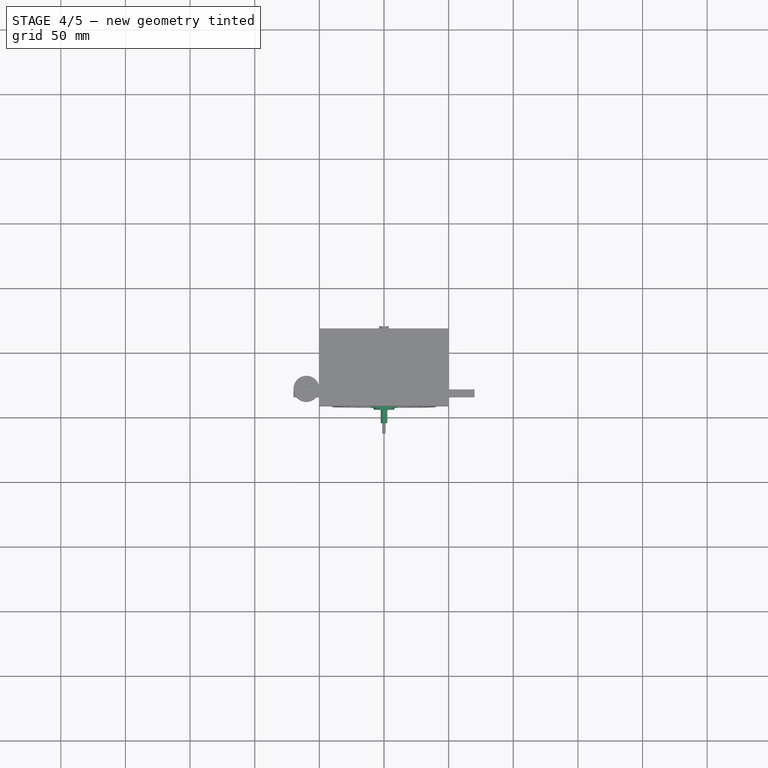
[diagram: stage 4 of 5 — top view after this stage's code; geometry added in this stage tinted green]
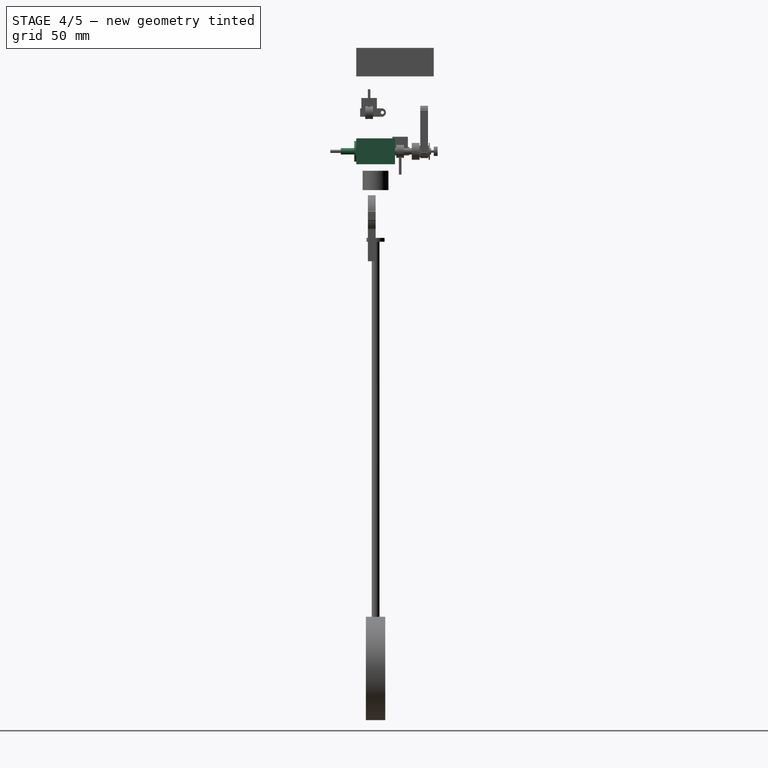
[diagram: stage 4 of 5 — right view after this stage's code; geometry added in this stage tinted green]
FEATURE [Part::Box] Box  label="Cube"
  AttacherType = Attacher::AttachEngine3D
  Height = 20
  Length = 20
  Placement = pos=(-10,0,-10) rot=(0,0,1;0rad)
  Width = 30
FEATURE [Part::Box] Box001  label="Cube001"
  AttacherType = Attacher::AttachEngine3D
  Height = 20
  Length = 20
  Placement = pos=(-10,0,-10) rot=(0,0,1;0rad)
  Width = 28
FEATURE [Part::Feature] Cut002001  label="TimingPulleyMinute"
  Placement = pos=(0,43,30) rot=(-1,0,0;1.5708rad)
  shape: bbox 13 x 14 x 13 mm, 97 faces (baked)
FEATURE [Part::Cylinder] Cylinder
  Angle = 360
  AttacherType = Attacher::AttachEngine3D
  FirstAngle = 0
  Height = 1.5
  Placement = pos=(0,-1.5,0) rot=(-1,0,0;1.5708rad)
  Radius = 7.5
  SecondAngle = 0
FEATURE [Part::Cylinder] Cylinder001
  Angle = 360
  AttacherType = Attacher::AttachEngine3D
  FirstAngle = 0
  Height = 5
  Placement = pos=(-8,0,-8) rot=(-1,0,0;1.5708rad)
  Radius = 1
  SecondAngle = 0
FEATURE [Part::Cylinder] Cylinder002
  Angle = 360
  AttacherType = Attacher::AttachEngine3D
  FirstAngle = 0
  Height = 5
  Placement = pos=(-8,0,8) rot=(-1,0,0;1.5708rad)
  Radius = 1
  SecondAngle = 0
FEATURE [Part::Cylinder] Cylinder003
  Angle = 360
  AttacherType = Attacher::AttachEngine3D
  FirstAngle = 0
  Height = 5
  Placement = pos=(8,0,-8) rot=(-1,0,0;1.5708rad)
  Radius = 1
  SecondAngle = 0
FEATURE [Part::Cylinder] Cylinder004
  Angle = 360
  AttacherType = Attacher::AttachEngine3D
  FirstAngle = 0
  Height = 5
  Placement = pos=(8,0,8) rot=(-1,0,0;1.5708rad)
  Radius = 1
  SecondAngle = 0
FEATURE [Part::Cylinder] Cylinder005
  Angle = 360
  AttacherType = Attacher::AttachEngine3D
  FirstAngle = 0
  Height = 50
  Placement = pos=(0,-12,0) rot=(-1,0,0;1.5708rad)
  Radius = 1.25
  SecondAngle = 0
FEATURE [Part::Cylinder] Cylinder006
  Angle = 360
  AttacherType = Attacher::AttachEngine3D
  FirstAngle = 0
  Height = 50
  Placement = pos=(0,-12,0) rot=(-1,0,0;1.5708rad)
  Radius = 2.5
  SecondAngle = 0
FEATURE [Part::Cylinder] Cylinder007
  Angle = 360
  AttacherType = Attacher::AttachEngine3D
  FirstAngle = 0
  Height = 1.5
  Placement = pos=(0,-1.5,0) rot=(-1,0,0;1.5708rad)
  Radius = 8
  SecondAngle = 0
FEATURE [Part::Cylinder] Cylinder013
  Angle = 360
  AttacherType = Attacher::AttachEngine3D
  FirstAngle = 0
  Height = 48
  Placement = pos=(0,-12,0) rot=(-1,0,0;1.5708rad)
  Radius = 2
  SecondAngle = 0
FEATURE [Part::MultiFuse] Fusion001
  Shapes = -> [Box,Cylinder,Cylinder006]
FEATURE [Part::MultiFuse] Fusion002
  Shapes = -> [Cylinder001,Cylinder002,Cylinder003,Cylinder004,Cylinder005]
FEATURE [Part::MultiFuse] Fusion003
  Shapes = -> [Box001,Cylinder007,Cylinder013]
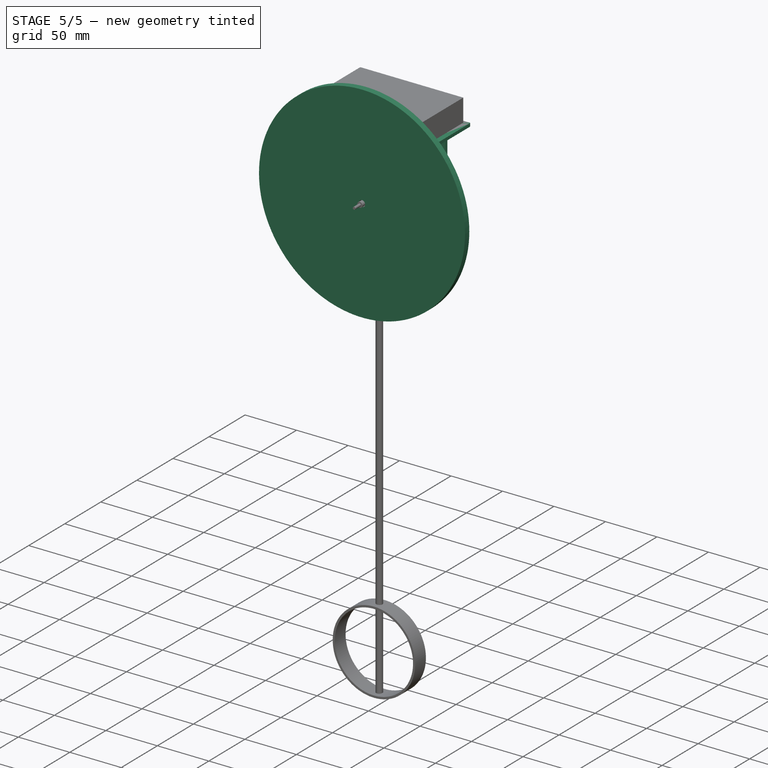
[diagram: stage 5 of 5 — iso view after this stage's code; geometry added in this stage tinted green]
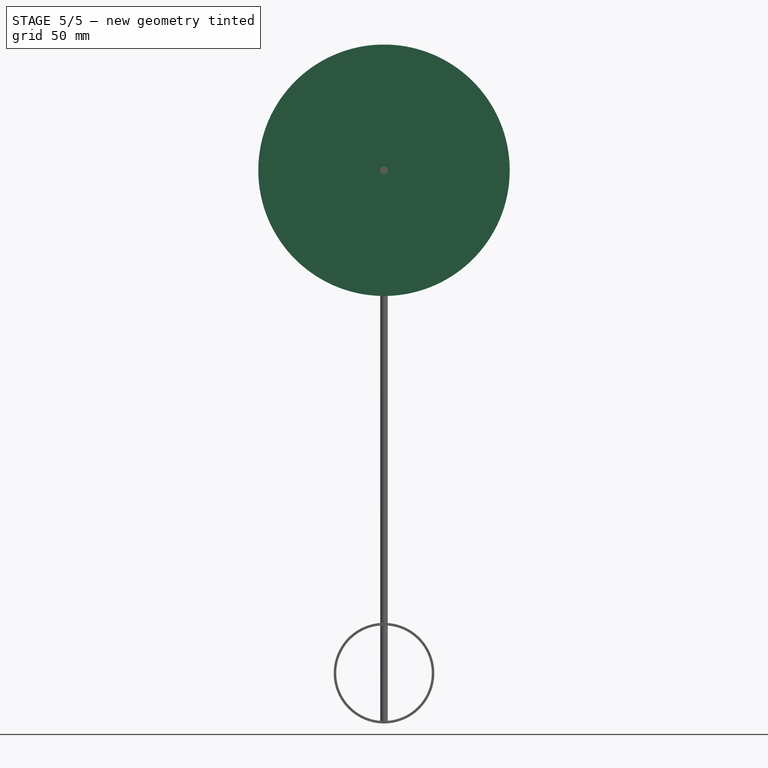
[diagram: stage 5 of 5 — front view after this stage's code; geometry added in this stage tinted green]
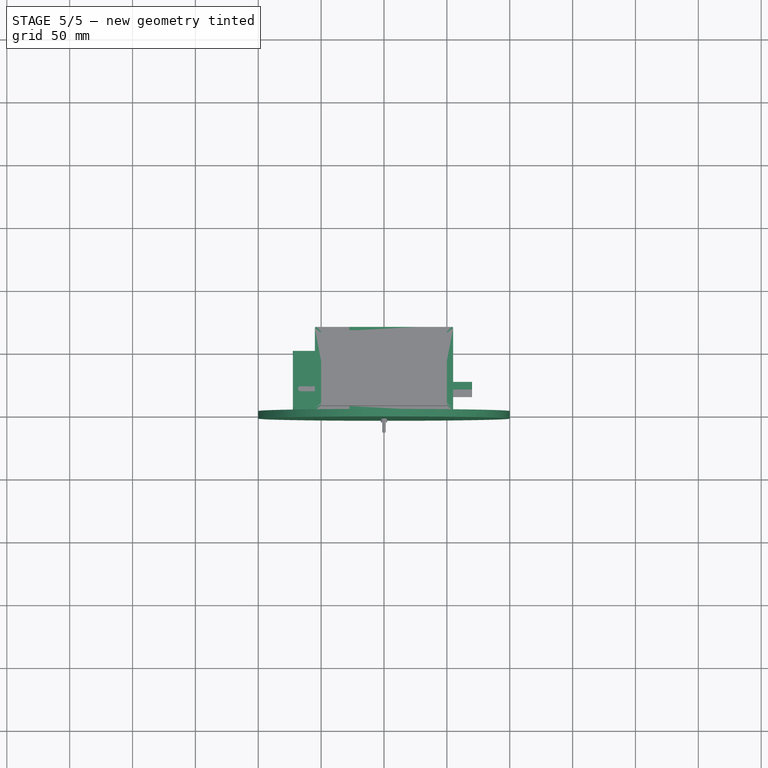
[diagram: stage 5 of 5 — top view after this stage's code; geometry added in this stage tinted green]
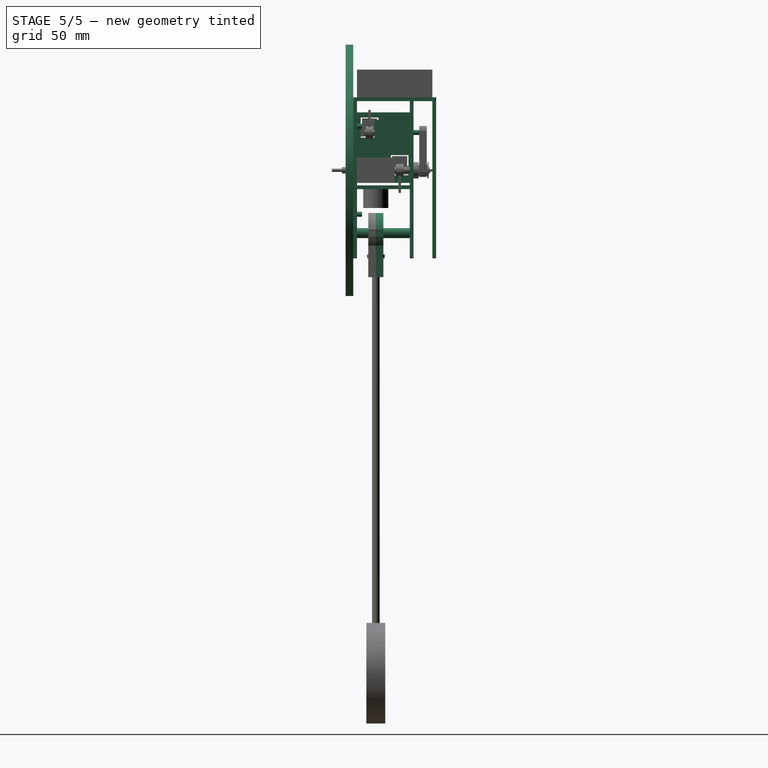
[diagram: stage 5 of 5 — right view after this stage's code; geometry added in this stage tinted green]
FEATURE [Part::Cut] Cut  label="HollowDoubleShaftStepper"
  Base = -> Fusion001
  Tool = -> Fusion002
FEATURE [Part::Cut] Cut001  label="DoubleShaftStepper"
  Base = -> Fusion003
  Placement = pos=(0,42,30) rot=(0,0,1;3.14159rad)
  Tool = -> Fusion004
FEATURE [Sketcher::SketchObject] Sketch  label="DialPlateShape"
  FullyConstrained = true
  Placement = pos=(0,0,0) rot=(1,0,0;1.5708rad)
  sketch-geometry (2):
    g0: Circle CenterX=0 CenterY=0 CenterZ=0 NormalX=0 NormalY=0 NormalZ=1 AngleXU=0 Radius=100
    g1: Circle CenterX=0 CenterY=0 CenterZ=0 NormalX=0 NormalY=0 NormalZ=1 AngleXU=0 Radius=3
  constraints (4):
    c: Coincident(g0,g-1)
    c: Diameter(g0) = 200
    c: Coincident(g1,g0)
    c: Diameter(g1) = 6
FEATURE [Part::Cylinder] Cylinder039  label="PendulumBearingShaft"
  Angle = 360
  AttacherType = Attacher::AttachEngine3D
  FirstAngle = 0
  Height = 48
  Placement = pos=(0,45,-50) rot=(1,0,0;1.5708rad)
  Radius = 4
  SecondAngle = 0
FEATURE [Part::FeaturePython] Tube002  label="PendelumBearing"  # WARN: FeaturePython — macro-defined, semantics opaque (R4)
  AttacherType = Attacher::AttachEngine3D
  Height = 7
  InnerRadius = 4
  OuterRadius = 11
  Placement = pos=(0,18.5,-50) rot=(1,0,0;1.5708rad)
FEATURE [Sketcher::SketchObject] Sketch015  label="FrontPlateShape"
  FullyConstrained = true
  Placement = pos=(0,0,0) rot=(1,0,0;1.5708rad)
  sketch-geometry (62):
    g0: Circle CenterX=0 CenterY=0 CenterZ=0 NormalX=0 NormalY=0 NormalZ=1 AngleXU=0 Radius=7.5
    g1: LineSegment StartX=-8 StartY=8 StartZ=0 EndX=-8 EndY=-8 EndZ=0
    g2: LineSegment StartX=-8 StartY=-8 StartZ=0 EndX=8 EndY=-8 EndZ=0
    g3: LineSegment StartX=8 StartY=-8 StartZ=0 EndX=8 EndY=8 EndZ=0
    g4: LineSegment StartX=8 StartY=8 StartZ=0 EndX=-8 EndY=8 EndZ=0
    g5: GeomPoint X=0 Y=0 Z=0
    g6: Circle CenterX=-8 CenterY=8 CenterZ=0 NormalX=0 NormalY=0 NormalZ=1 AngleXU=0 Radius=1
    g7: Circle CenterX=8 CenterY=8 CenterZ=0 NormalX=0 NormalY=0 NormalZ=1 AngleXU=0 Radius=1
    g8: Circle CenterX=8 CenterY=-8 CenterZ=0 NormalX=0 NormalY=0 NormalZ=1 AngleXU=0 Radius=1
    g9: Circle CenterX=-8 CenterY=-8 CenterZ=0 NormalX=0 NormalY=0 NormalZ=1 AngleXU=0 Radius=1
    g10: LineSegment StartX=32.5 StartY=55 StartZ=0 EndX=32.5 EndY=-69 EndZ=0
    g11: LineSegment StartX=31.5 StartY=-70 StartZ=0 EndX=-31.5 EndY=-70 EndZ=0
    g12: LineSegment StartX=-27 StartY=42 StartZ=0 EndX=-24 EndY=42 EndZ=0
    g13: LineSegment StartX=-24 StartY=42 StartZ=0 EndX=-24 EndY=-6 EndZ=0
    g14: LineSegment StartX=-24 StartY=-6 StartZ=0 EndX=-27 EndY=-6 EndZ=0
    g15: LineSegment StartX=-27 StartY=-6 StartZ=0 EndX=-27 EndY=42 EndZ=0
    g16: Circle CenterX=0 CenterY=-50 CenterZ=0 NormalX=0 NormalY=0 NormalZ=1 AngleXU=0 Radius=4
    g17: LineSegment StartX=-27.5 StartY=50 StartZ=0 EndX=27.5 EndY=50 EndZ=0
    g18: LineSegment StartX=27.5 StartY=50 StartZ=0 EndX=27.5 EndY=-65 EndZ=0
    g19: LineSegment StartX=27.5 StartY=-65 StartZ=0 EndX=-27.5 EndY=-65 EndZ=0
    g20: LineSegment StartX=-27.5 StartY=-65 StartZ=0 EndX=-27.5 EndY=50 EndZ=0
    g21: Circle CenterX=-27.5 CenterY=50 CenterZ=0 NormalX=0 NormalY=0 NormalZ=1 AngleXU=0 Radius=1.5
    g22: Circle CenterX=27.5 CenterY=50 CenterZ=0 NormalX=0 NormalY=0 NormalZ=1 AngleXU=0 Radius=1.5
    g23: Circle CenterX=-27.5 CenterY=-65 CenterZ=0 NormalX=0 NormalY=0 NormalZ=1 AngleXU=0 Radius=1.5
    g24: Circle CenterX=27.5 CenterY=-65 CenterZ=0 NormalX=0 NormalY=0 NormalZ=1 AngleXU=0 Radius=1.5
    g25: LineSegment StartX=-27.5 StartY=-20 StartZ=0 EndX=27.5 EndY=-20 EndZ=0
    g26: Circle CenterX=-27.5 CenterY=-20 CenterZ=0 NormalX=0 NormalY=0 NormalZ=1 AngleXU=0 Radius=1.5
    g27: Circle CenterX=27.5 CenterY=-20 CenterZ=0 NormalX=0 NormalY=0 NormalZ=1 AngleXU=0 Radius=1.5
    g28: LineSegment StartX=-32.5 StartY=55 StartZ=0 EndX=-32.5 EndY=-9 EndZ=0
    g29: LineSegment StartX=-32.5 StartY=-9 StartZ=0 EndX=-71.5 EndY=-9 EndZ=0
    g30: LineSegment StartX=-72.5 StartY=-10 StartZ=0 EndX=-72.5 EndY=-17 EndZ=0
    g31: LineSegment StartX=-71.5 StartY=-18 StartZ=0 EndX=-32.5 EndY=-18 EndZ=0
    g32: LineSegment StartX=-32.5 StartY=-18 StartZ=0 EndX=-32.5 EndY=-69 EndZ=0
    g33: LineSegment StartX=-32.5 StartY=-18 StartZ=0 EndX=-32.5 EndY=-9 EndZ=0
    g34: LineSegment StartX=-68.5 StartY=-12 StartZ=0 EndX=-51.5 EndY=-12 EndZ=0
    g35: LineSegment StartX=-51.5 StartY=-12 StartZ=0 EndX=-51.5 EndY=-15 EndZ=0
    g36: LineSegment StartX=-51.5 StartY=-15 StartZ=0 EndX=-68.5 EndY=-15 EndZ=0
    g37: LineSegment StartX=-68.5 StartY=-15 StartZ=0 EndX=-68.5 EndY=-12 EndZ=0
    g38: LineSegment StartX=-32.5 StartY=55 StartZ=0 EndX=-27.5 EndY=55 EndZ=0
    g39: LineSegment StartX=-27.5 StartY=55 StartZ=0 EndX=-27.5 EndY=57.5 EndZ=0
    g40: LineSegment StartX=-27.5 StartY=57.5 StartZ=0 EndX=27.5 EndY=57.5 EndZ=0
    g41: LineSegment StartX=27.5 StartY=57.5 StartZ=0 EndX=27.5 EndY=55 EndZ=0
    g42: LineSegment StartX=27.5 StartY=55 StartZ=0 EndX=32.5 EndY=55 EndZ=0
    g43: LineSegment StartX=27.5 StartY=50 StartZ=0 EndX=27.5 EndY=55 EndZ=0
    g44: LineSegment StartX=-27.5 StartY=50 StartZ=0 EndX=-27.5 EndY=55 EndZ=0
    g45: ArcOfCircle CenterX=-71.5 CenterY=-10 CenterZ=0 NormalX=0 NormalY=0 NormalZ=1 AngleXU=0 Radius=1 StartAngle=1.5708 EndAngle=3.14159
    g46: GeomPoint X=-72.5 Y=-9 Z=0
    g47: ArcOfCircle CenterX=-71.5 CenterY=-17 CenterZ=0 NormalX=0 NormalY=0 NormalZ=1 AngleXU=0 Radius=1 StartAngle=3.14159 EndAngle=4.71239
    g48: GeomPoint X=-72.5 Y=-18 Z=0
    g49: ArcOfCircle CenterX=-31.5 CenterY=-69 CenterZ=0 NormalX=0 NormalY=0 NormalZ=1 AngleXU=0 Radius=1 StartAngle=3.14159 EndAngle=4.71239
    g50: GeomPoint X=-32.5 Y=-70 Z=0
    g51: ArcOfCircle CenterX=31.5 CenterY=-69 CenterZ=0 NormalX=0 NormalY=0 NormalZ=1 AngleXU=0 Radius=1 StartAngle=4.71239 EndAngle=6.28319
    g52: GeomPoint X=32.5 Y=-70 Z=0
    g53: ArcOfCircle CenterX=0 CenterY=0 CenterZ=0 NormalX=0 NormalY=0 NormalZ=1 AngleXU=0 Radius=37 StartAngle=1.42745 EndAngle=1.71414
    g54: ArcOfCircle CenterX=1.47e-14 CenterY=0 CenterZ=0 NormalX=0 NormalY=0 NormalZ=1 AngleXU=0 Radius=33 StartAngle=1.42745 EndAngle=1.71414
    g55: ArcOfCircle CenterX=0 CenterY=0 CenterZ=0 NormalX=0 NormalY=0 NormalZ=1 AngleXU=0 Radius=37 StartAngle=4.56904 EndAngle=4.85574
    g56: ArcOfCircle CenterX=0 CenterY=0 CenterZ=0 NormalX=0 NormalY=0 NormalZ=1 AngleXU=0 Radius=33 StartAngle=4.56904 EndAngle=4.85574
    g57: ArcOfCircle CenterX=-5 CenterY=-34.641 CenterZ=0 NormalX=0 NormalY=0 NormalZ=1 AngleXU=0 Radius=2 StartAngle=1.42745 EndAngle=4.56904
    g58: ArcOfCircle CenterX=5 CenterY=-34.641 CenterZ=0 NormalX=0 NormalY=0 NormalZ=1 AngleXU=0 Radius=2 StartAngle=4.85574 EndAngle=7.99733
    g59: ArcOfCircle CenterX=-5 CenterY=34.641 CenterZ=0 NormalX=0 NormalY=0 NormalZ=1 AngleXU=0 Radius=2 StartAngle=1.71414 EndAngle=4.85574
    g60: ArcOfCircle CenterX=5 CenterY=34.641 CenterZ=0 NormalX=0 NormalY=0 NormalZ=1 AngleXU=0 Radius=2 StartAngle=4.56904 EndAngle=7.71063
    g61: LineSegment StartX=4.71429 StartY=32.6615 StartZ=0 EndX=5.28571 EndY=36.6205 EndZ=0
  constraints (158):
    c: Coincident(g0,g-1)
    c: Diameter(g0) = 15
    c: Coincident(g1,g2)
    c: Coincident(g2,g3)
    c: Coincident(g3,g4)
    c: Coincident(g4,g1)
    c: Horizontal(g2)
    c: Horizontal(g4)
    c: Vertical(g1)
    c: Vertical(g3)
    c: Symmetric(g2,g1,g5)
    c: Coincident(g5,g0)
    c: Equal(g4,g3)
    c: Distance(g4) = 16
    c: Coincident(g6,g1)
    c: Coincident(g7,g3)
    c: Coincident(g8,g2)
    c: Coincident(g9,g1)
    c: Diameter(g6) = 2
    c: Equal(g6,g7)
    c: Equal(g6,g9)
    c: Equal(g6,g8)
    c: Horizontal(g11)
    c: Vertical(g10)
    c: Symmetric(g28,g10,g-2)
    c: DistanceY(g0,g10) = 55
    c: DistanceY(g52,g0) = 70
    c: Coincident(g12,g13)
    c: Coincident(g13,g14)
    c: Coincident(g14,g15)
    c: Coincident(g15,g12)
    c: Horizontal(g12)
    c: Horizontal(g14)
    c: Vertical(g13)
    c: Vertical(g15)
    c: Distance(g12) = 3
    c: PointOnObject(g16,g-2)
    c: Diameter(g16) = 8
    c: DistanceY(g16,g0) = 50
    c: Coincident(g17,g18)
    c: Coincident(g18,g19)
    c: Coincident(g19,g20)
    c: Coincident(g20,g17)
    c: Horizontal(g17)
    c: Horizontal(g19)
    c: Vertical(g18)
    c: Vertical(g20)
    c: DistanceX(g28,g17) = 5
    c: DistanceX(g17,g10) = 5
    c: DistanceY(g17,g10) = 5
    c: DistanceY(g52,g18) = 5
    c: Coincident(g21,g17)
    c: Coincident(g22,g17)
    c: Coincident(g23,g19)
    c: Coincident(g24,g18)
    c: Diameter(g23) = 3
    c: Equal(g23,g21)
    c: Equal(g22,g23)
    c: Equal(g23,g24)
    c: PointOnObject(g25,g20)
    c: PointOnObject(g25,g18)
    c: Horizontal(g25)
    c: DistanceY(g25,g21) = 70
    c: Coincident(g26,g25)
    c: Coincident(g27,g25)
    c: Equal(g26,g23)
    c: Equal(g23,g27)
    c: DistanceX(g13,g0) = 24
    c: DistanceY(g13,g0) = 6
    c: DistanceY(g0,g12) = 42
    c: Vertical(g28)
    c: Coincident(g29,g28)
    c: Horizontal(g29)
    c: Vertical(g30)
    c: Horizontal(g31)
    c: Coincident(g32,g31)
    c: Vertical(g32)
    c: Coincident(g33,g31)
    c: Coincident(g33,g28)
    c: Vertical(g33)
    c: Coincident(g34,g35)
    c: Coincident(g35,g36)
    c: Coincident(g36,g37)
    c: Coincident(g37,g34)
    c: Horizontal(g34)
    c: Horizontal(g36)
    c: Vertical(g35)
    c: Vertical(g37)
    c: Distance(g37) = 3
    c: DistanceY(g34,g46) = 3
    c: DistanceY(g48,g36) = 3
    c: DistanceX(g46,g34) = 4
    c: DistanceX(g46,g28) = 40
    c: Distance(g34) = 17
    c: DistanceY(g31,g0) = 18
    c: DistanceX(g28,g10) = 65
    c: Coincident(g38,g28)
    c: Horizontal(g38)
    c: Coincident(g39,g38)
    c: Vertical(g39)
    c: Coincident(g40,g39)
    c: Horizontal(g40)
    c: Coincident(g41,g40)
    c: Vertical(g41)
    c: Coincident(g42,g41)
    c: Coincident(g42,g10)
    c: Horizontal(g42)
    c: Coincident(g43,g22)
    c: Coincident(g43,g41)
    c: Vertical(g43)
    c: Coincident(g44,g21)
    c: Coincident(g44,g38)
    c: Vertical(g44)
    c: DistanceY(g28,g39) = 2.5
    c: PointOnObject(g46,g30)
    c: PointOnObject(g46,g29)
    c: Tangent(g30,g45) = -1.5708
    c: Tangent(g29,g45) = -1.5708
    c: PointOnObject(g48,g30)
    c: PointOnObject(g48,g31)
    c: Tangent(g30,g47) = -1.5708
    c: Tangent(g31,g47) = -1.5708
    c: Equal(g45,g47)
    c: PointOnObject(g50,g32)
    c: PointOnObject(g50,g11)
    c: Tangent(g32,g49) = -1.5708
    c: Tangent(g11,g49) = 1.5708
    c: PointOnObject(g52,g11)
    c: PointOnObject(g52,g10)
    c: Tangent(g11,g51) = 1.5708
    c: Tangent(g10,g51) = 1.5708
    c: Equal(g49,g47)
    c: Equal(g47,g51)
    c: Diameter(g47) = 2
    c: Coincident(g53,g0)
    c: PointOnObject(g54,g-1)
    c: Coincident(g55,g0)
    c: Coincident(g56,g0)
    c: Tangent(g60,g53) = -1.5708
    c: Tangent(g60,g54) = 1.5708
    c: Tangent(g59,g54) = 1.5708
    c: Tangent(g59,g53) = -1.5708
    c: Tangent(g57,g56) = 1.5708
    c: Tangent(g57,g55) = -1.5708
    c: Tangent(g58,g56) = 1.5708
    c: Tangent(g58,g55) = -1.5708
    c: Diameter(g54) = 66
    c: Equal(g54,g56)
    c: Diameter(g53) = 74
    c: Equal(g53,g55)
    c: Coincident(g61,g54)
    c: Coincident(g61,g53)
    c: Equal(g60,g59)
    c: Distance(g61) = 4
    c: Horizontal(g59,g60)
    c: Horizontal(g57,g58)
    c: Vertical(g60,g58)
    c: DistanceX(g59,g60) = 10
FEATURE [Part::Extrusion] Extrude  label="FrontPlate"
  Base = -> Sketch015
  Dir = (0,-1,2e-16)
  DirMode = 2
  FaceMakerClass = Part::FaceMakerBullseye
  LengthFwd = 3
  LengthRev = 0
  Solid = true
  Symmetric = false
FEATURE [Sketcher::SketchObject] Sketch016  label="MiddlePlateShape"
  FullyConstrained = true
  Placement = pos=(0,0,0) rot=(0,0.707107,0.707107;3.14159rad)
  sketch-geometry (74):
    g0: Circle CenterX=0 CenterY=-50 CenterZ=0 NormalX=0 NormalY=0 NormalZ=1 AngleXU=0 Radius=4
    g1: LineSegment StartX=31.5 StartY=-70 StartZ=0 EndX=-31.5 EndY=-70 EndZ=0
    g2: LineSegment StartX=-32.5 StartY=-69 StartZ=0 EndX=-32.5 EndY=55 EndZ=0
    g3: LineSegment StartX=24 StartY=42 StartZ=0 EndX=27 EndY=42 EndZ=0
    g4: LineSegment StartX=27 StartY=42 StartZ=0 EndX=27 EndY=-6 EndZ=0
    g5: LineSegment StartX=27 StartY=-6 StartZ=0 EndX=24 EndY=-6 EndZ=0
    g6: LineSegment StartX=24 StartY=-6 StartZ=0 EndX=24 EndY=42 EndZ=0
    g7: LineSegment StartX=-27.5 StartY=50 StartZ=0 EndX=27.5 EndY=50 EndZ=0
    g8: LineSegment StartX=27.5 StartY=50 StartZ=0 EndX=27.5 EndY=-65 EndZ=0
    g9: LineSegment StartX=27.5 StartY=-65 StartZ=0 EndX=-27.5 EndY=-65 EndZ=0
    g10: LineSegment StartX=-27.5 StartY=-65 StartZ=0 EndX=-27.5 EndY=50 EndZ=0
    g11: Circle CenterX=-27.5 CenterY=50 CenterZ=0 NormalX=0 NormalY=0 NormalZ=1 AngleXU=0 Radius=1.5
    g12: Circle CenterX=27.5 CenterY=50 CenterZ=0 NormalX=0 NormalY=0 NormalZ=1 AngleXU=0 Radius=1.5
    g13: Circle CenterX=-27.5 CenterY=-65 CenterZ=0 NormalX=0 NormalY=0 NormalZ=1 AngleXU=0 Radius=1.5
    g14: Circle CenterX=27.5 CenterY=-65 CenterZ=0 NormalX=0 NormalY=0 NormalZ=1 AngleXU=0 Radius=1.5
    g15: ArcOfCircle CenterX=0 CenterY=31 CenterZ=0 NormalX=0 NormalY=0 NormalZ=1 AngleXU=0 Radius=8 StartAngle=0 EndAngle=3.14159
    g16: ArcOfCircle CenterX=0 CenterY=29 CenterZ=0 NormalX=0 NormalY=0 NormalZ=1 AngleXU=0 Radius=8 StartAngle=3.14159 EndAngle=6.28319
    g17: LineSegment StartX=-8 StartY=31 StartZ=0 EndX=-8 EndY=29 EndZ=0
    g18: LineSegment StartX=8 StartY=29 StartZ=0 EndX=8 EndY=31 EndZ=0
    g19: LineSegment StartX=7.7 StartY=23.3 StartZ=0 EndX=7.7 EndY=38.7 EndZ=0
    g20: LineSegment StartX=7.7 StartY=38.7 StartZ=0 EndX=-7.7 EndY=38.7 EndZ=0
    g21: LineSegment StartX=-7.7 StartY=38.7 StartZ=0 EndX=-7.7 EndY=23.3 EndZ=0
    g22: LineSegment StartX=-7.7 StartY=23.3 StartZ=0 EndX=7.7 EndY=23.3 EndZ=0
    g23: GeomPoint X=0 Y=31 Z=0
    g24: LineSegment StartX=-7.7 StartY=36.7 StartZ=0 EndX=-7.7 EndY=21.3 EndZ=0
    g25: LineSegment StartX=-7.7 StartY=21.3 StartZ=0 EndX=7.7 EndY=21.3 EndZ=0
    g26: LineSegment StartX=7.7 StartY=21.3 StartZ=0 EndX=7.7 EndY=36.7 EndZ=0
    g27: LineSegment StartX=7.7 StartY=36.7 StartZ=0 EndX=-7.7 EndY=36.7 EndZ=0
    g28: GeomPoint X=0 Y=29 Z=0
    g29: ArcOfCircle CenterX=-7.7 CenterY=38.7 CenterZ=0 NormalX=0 NormalY=0 NormalZ=1 AngleXU=0 Radius=1.005 StartAngle=-3.6e-15 EndAngle=3.14159
    g30: ArcOfCircle CenterX=-7.7 CenterY=36.7 CenterZ=0 NormalX=0 NormalY=0 NormalZ=1 AngleXU=0 Radius=1.005 StartAngle=3.14159 EndAngle=6.28319
    g31: LineSegment StartX=-8.705 StartY=38.7 StartZ=0 EndX=-8.705 EndY=36.7 EndZ=0
    g32: LineSegment StartX=-6.695 StartY=36.7 StartZ=0 EndX=-6.695 EndY=38.7 EndZ=0
    g33: ArcOfCircle CenterX=7.7 CenterY=38.7 CenterZ=0 NormalX=0 NormalY=0 NormalZ=1 AngleXU=0 Radius=1.005 StartAngle=-3.6e-15 EndAngle=3.14159
    g34: ArcOfCircle CenterX=7.7 CenterY=36.7 CenterZ=0 NormalX=0 NormalY=0 NormalZ=1 AngleXU=0 Radius=1.005 StartAngle=3.14159 EndAngle=6.28319
    g35: LineSegment StartX=6.695 StartY=38.7 StartZ=0 EndX=6.695 EndY=36.7 EndZ=0
    g36: LineSegment StartX=8.705 StartY=36.7 StartZ=0 EndX=8.705 EndY=38.7 EndZ=0
    g37: ArcOfCircle CenterX=7.7 CenterY=23.3 CenterZ=0 NormalX=0 NormalY=0 NormalZ=1 AngleXU=0 Radius=1.005 StartAngle=-9e-16 EndAngle=3.14159
    g38: ArcOfCircle CenterX=7.7 CenterY=21.3 CenterZ=0 NormalX=0 NormalY=0 NormalZ=1 AngleXU=0 Radius=1.005 StartAngle=3.14159 EndAngle=6.28319
    g39: LineSegment StartX=6.695 StartY=23.3 StartZ=0 EndX=6.695 EndY=21.3 EndZ=0
    g40: LineSegment StartX=8.705 StartY=21.3 StartZ=0 EndX=8.705 EndY=23.3 EndZ=0
    g41: ArcOfCircle CenterX=-7.7 CenterY=23.3 CenterZ=0 NormalX=0 NormalY=0 NormalZ=1 AngleXU=0 Radius=1.005 StartAngle=2e-16 EndAngle=3.14159
    g42: ArcOfCircle CenterX=-7.7 CenterY=21.3 CenterZ=0 NormalX=0 NormalY=0 NormalZ=1 AngleXU=0 Radius=1.005 StartAngle=3.14159 EndAngle=6.28319
    g43: LineSegment StartX=-8.705 StartY=23.3 StartZ=0 EndX=-8.705 EndY=21.3 EndZ=0
    g44: LineSegment StartX=-6.695 StartY=21.3 StartZ=0 EndX=-6.695 EndY=23.3 EndZ=0
    g45: Circle CenterX=0 CenterY=0 CenterZ=0 NormalX=0 NormalY=0 NormalZ=1 AngleXU=0 Radius=7.5
    g46: LineSegment StartX=-27.5 StartY=-20 StartZ=0 EndX=27.5 EndY=-20 EndZ=0
    g47: Circle CenterX=-27.5 CenterY=-20 CenterZ=0 NormalX=0 NormalY=0 NormalZ=1 AngleXU=0 Radius=1.5
    g48: Circle CenterX=27.5 CenterY=-20 CenterZ=0 NormalX=0 NormalY=0 NormalZ=1 AngleXU=0 Radius=1.5
    g49: LineSegment StartX=32.5 StartY=55 StartZ=0 EndX=32.5 EndY=-9 EndZ=0
    g50: LineSegment StartX=32.5 StartY=-9 StartZ=0 EndX=71.5 EndY=-9 EndZ=0
    g51: LineSegment StartX=72.5 StartY=-10 StartZ=0 EndX=72.5 EndY=-17 EndZ=0
    g52: LineSegment StartX=71.5 StartY=-18 StartZ=0 EndX=32.5 EndY=-18 EndZ=0
    g53: LineSegment StartX=32.5 StartY=-18 StartZ=0 EndX=32.5 EndY=-69 EndZ=0
    g54: LineSegment StartX=32.5 StartY=-18 StartZ=0 EndX=32.5 EndY=-9 EndZ=0
    g55: LineSegment StartX=51.5 StartY=-12 StartZ=0 EndX=68.5 EndY=-12 EndZ=0
    g56: LineSegment StartX=68.5 StartY=-12 StartZ=0 EndX=68.5 EndY=-15 EndZ=0
    g57: LineSegment StartX=68.5 StartY=-15 StartZ=0 EndX=51.5 EndY=-15 EndZ=0
    g58: LineSegment StartX=51.5 StartY=-15 StartZ=0 EndX=51.5 EndY=-12 EndZ=0
    g59: LineSegment StartX=-32.5 StartY=55 StartZ=0 EndX=-27.5 EndY=55 EndZ=0
    g60: LineSegment StartX=-27.5 StartY=55 StartZ=0 EndX=-27.5 EndY=57.5 EndZ=0
    g61: LineSegment StartX=-27.5 StartY=57.5 StartZ=0 EndX=27.5 EndY=57.5 EndZ=0
    g62: LineSegment StartX=27.5 StartY=57.5 StartZ=0 EndX=27.5 EndY=55 EndZ=0
    g63: LineSegment StartX=27.5 StartY=55 StartZ=0 EndX=32.5 EndY=55 EndZ=0
    g64: LineSegment StartX=-27.5 StartY=50 StartZ=0 EndX=-27.5 EndY=55 EndZ=0
    g65: LineSegment StartX=27.5 StartY=50 StartZ=0 EndX=27.5 EndY=55 EndZ=0
    g66: ArcOfCircle CenterX=71.5 CenterY=-10 CenterZ=0 NormalX=0 NormalY=0 NormalZ=1 AngleXU=0 Radius=1 StartAngle=5e-16 EndAngle=1.5708
    g67: GeomPoint X=72.5 Y=-9 Z=0
    g68: ArcOfCircle CenterX=71.5 CenterY=-17 CenterZ=0 NormalX=0 NormalY=0 NormalZ=1 AngleXU=0 Radius=1 StartAngle=4.71239 EndAngle=6.28319
    g69: GeomPoint X=72.5 Y=-18 Z=0
    g70: ArcOfCircle CenterX=31.5 CenterY=-69 CenterZ=0 NormalX=0 NormalY=0 NormalZ=1 AngleXU=0 Radius=1 StartAngle=4.71239 EndAngle=6.28319
    g71: GeomPoint X=32.5 Y=-70 Z=0
    g72: ArcOfCircle CenterX=-31.5 CenterY=-69 CenterZ=0 NormalX=0 NormalY=0 NormalZ=1 AngleXU=0 Radius=1 StartAngle=3.14159 EndAngle=4.71239
    g73: GeomPoint X=-32.5 Y=-70 Z=0
  constraints (180):
    c: PointOnObject(g0,g-2)
    c: Diameter(g0) = 8
    c: DistanceY(g0,g-1) = 50
    c: Horizontal(g1)
    c: Vertical(g2)
    c: Symmetric(g2,g49,g-2)
    c: DistanceY(g-1,g49) = 55
    c: DistanceY(g71,g-1) = 70
    c: Coincident(g3,g4)
    c: Coincident(g4,g5)
    c: Coincident(g5,g6)
    c: Coincident(g6,g3)
    c: Horizontal(g3)
    c: Horizontal(g5)
    c: Vertical(g4)
    c: Vertical(g6)
    c: Distance(g3) = 3
    c: Coincident(g7,g8)
    c: Coincident(g8,g9)
    c: Coincident(g9,g10)
    c: Coincident(g10,g7)
    c: Horizontal(g7)
    c: Horizontal(g9)
    c: Vertical(g8)
    c: Vertical(g10)
    c: DistanceX(g2,g7) = 5
    c: DistanceX(g7,g49) = 5
    c: DistanceY(g7,g49) = 5
    c: DistanceY(g71,g8) = 5
    c: Coincident(g11,g7)
    c: Coincident(g12,g7)
    c: Coincident(g13,g9)
    c: Coincident(g14,g8)
    c: Diameter(g13) = 3
    c: Equal(g13,g14)
    c: Equal(g13,g11)
    c: Equal(g12,g13)
    c: Tangent(g15,g17) = -1.5708
    c: Tangent(g17,g16) = -1.5708
    c: Tangent(g16,g18) = -1.5708
    c: Tangent(g18,g15) = -1.5708
    c: Equal(g15,g16)
    c: PointOnObject(g15,g-2)
    c: PointOnObject(g16,g-2)
    c: Diameter(g15) = 16
    c: DistanceY(g16,g15) = 2
    c: Coincident(g19,g20)
    c: Coincident(g20,g21)
    c: Coincident(g21,g22)
    c: Coincident(g22,g19)
    c: Horizontal(g20)
    c: Horizontal(g22)
    c: Vertical(g19)
    c: Vertical(g21)
    c: Symmetric(g20,g19,g23)
    c: Coincident(g23,g15)
    c: Coincident(g24,g25)
    c: Coincident(g25,g26)
    c: Coincident(g26,g27)
    c: Coincident(g27,g24)
    c: Horizontal(g25)
    c: Horizontal(g27)
    c: Vertical(g24)
    c: Vertical(g26)
    c: Symmetric(g25,g24,g28)
    c: Coincident(g28,g16)
    c: Equal(g26,g19)
    c: Equal(g25,g26)
    c: Equal(g25,g22)
    c: Distance(g25) = 15.4
    c: Tangent(g29,g31) = -1.5708
    c: Tangent(g31,g30) = -1.5708
    c: Tangent(g30,g32) = -1.5708
    c: Tangent(g32,g29) = -1.5708
    c: Equal(g29,g30)
    c: Coincident(g29,g20)
    c: Coincident(g30,g24)
    c: Tangent(g33,g35) = -1.5708
    c: Tangent(g35,g34) = -1.5708
    c: Tangent(g34,g36) = -1.5708
    c: Tangent(g36,g33) = -1.5708
    c: Equal(g33,g34)
    c: Coincident(g33,g19)
    c: Coincident(g34,g26)
    c: Tangent(g37,g39) = -1.5708
    c: Tangent(g39,g38) = -1.5708
    c: Tangent(g38,g40) = -1.5708
    c: Tangent(g40,g37) = -1.5708
    c: Equal(g37,g38)
    c: Coincident(g37,g19)
    c: Coincident(g38,g25)
    c: Tangent(g41,g43) = -1.5708
    c: Tangent(g43,g42) = -1.5708
    c: Tangent(g42,g44) = -1.5708
    c: Tangent(g44,g41) = -1.5708
    c: Equal(g41,g42)
    c: Coincident(g41,g21)
    c: Coincident(g42,g24)
    c: Diameter(g42) = 2.01
    c: Equal(g42,g38)
    c: Equal(g42,g30)
    c: Equal(g42,g34)
    c: DistanceY(g-1,g16) = 29
    c: Coincident(g45,g-1)
    c: Diameter(g45) = 15
    c: PointOnObject(g46,g10)
    c: PointOnObject(g46,g8)
    c: Horizontal(g46)
    c: DistanceY(g46,g11) = 70
    c: Coincident(g47,g46)
    c: Coincident(g48,g46)
    c: Equal(g47,g13)
    c: Equal(g13,g48)
    c: DistanceX(g45,g5) = 24
    c: DistanceY(g5,g45) = 6
    c: DistanceY(g45,g3) = 42
    c: Vertical(g49)
    c: Coincident(g50,g49)
    c: Horizontal(g50)
    c: Vertical(g51)
    c: Horizontal(g52)
    c: Coincident(g53,g52)
    c: Vertical(g53)
    c: Coincident(g54,g52)
    c: Coincident(g54,g49)
    c: Vertical(g54)
    c: Coincident(g55,g56)
    c: Coincident(g56,g57)
    c: Coincident(g57,g58)
    c: Coincident(g58,g55)
    c: Horizontal(g55)
    c: Horizontal(g57)
    c: Vertical(g56)
    c: Vertical(g58)
    c: Distance(g56) = 3
    c: DistanceY(g55,g67) = 3
    c: DistanceY(g69,g56) = 3
    c: DistanceX(g49,g67) = 40
    c: DistanceY(g52,g45) = 18
    c: Distance(g55) = 17
    c: DistanceX(g55,g67) = 4
    c: DistanceX(g2,g49) = 65
    c: Coincident(g59,g2)
    c: Horizontal(g59)
    c: Coincident(g60,g59)
    c: Vertical(g60)
    c: Coincident(g61,g60)
    c: Horizontal(g61)
    c: Coincident(g62,g61)
    c: Vertical(g62)
    c: Coincident(g63,g62)
    c: Coincident(g63,g49)
    c: Horizontal(g63)
    c: Coincident(g64,g11)
    c: Coincident(g64,g59)
    c: Vertical(g64)
    c: Coincident(g65,g12)
    c: Coincident(g65,g62)
    c: Vertical(g65)
    c: DistanceY(g2,g60) = 2.5
    c: PointOnObject(g67,g50)
    c: PointOnObject(g67,g51)
    c: Tangent(g50,g66) = 1.5708
    c: Tangent(g51,g66) = 1.5708
    c: PointOnObject(g69,g52)
    c: PointOnObject(g69,g51)
    c: Tangent(g52,g68) = 1.5708
    c: Tangent(g51,g68) = 1.5708
    c: Equal(g68,g66)
    c: PointOnObject(g71,g1)
    c: PointOnObject(g71,g53)
    c: Tangent(g1,g70) = 1.5708
    c: Tangent(g53,g70) = 1.5708
    c: PointOnObject(g73,g1)
    c: PointOnObject(g73,g2)
    c: Tangent(g1,g72) = 1.5708
    c: Tangent(g2,g72) = 1.5708
    c: Equal(g70,g68)
    c: Equal(g68,g72)
    c: Diameter(g68) = 2
FEATURE [Part::Extrusion] Extrude009  label="MiddlePlate"
  Base = -> Sketch016
  Dir = (0,1,-2e-16)
  DirMode = 2
  FaceMakerClass = Part::FaceMakerBullseye
  LengthFwd = 3
  LengthRev = 0
  Placement = pos=(0,42,0) rot=(0,0,1;0rad)
  Solid = true
  Symmetric = false
FEATURE [Sketcher::SketchObject] Sketch017  label="BackPlateShape"
  FullyConstrained = true
  Placement = pos=(0,0,0) rot=(0,0.707107,0.707107;3.14159rad)
  sketch-geometry (24):
    g0: LineSegment StartX=32.5 StartY=55 StartZ=0 EndX=32.5 EndY=-69 EndZ=0
    g1: LineSegment StartX=31.5 StartY=-70 StartZ=0 EndX=-31.5 EndY=-70 EndZ=0
    g2: LineSegment StartX=-32.5 StartY=-69 StartZ=0 EndX=-32.5 EndY=55 EndZ=0
    g3: LineSegment StartX=-27.5 StartY=50 StartZ=0 EndX=27.5 EndY=50 EndZ=0
    g4: LineSegment StartX=27.5 StartY=50 StartZ=0 EndX=27.5 EndY=-65 EndZ=0
    g5: LineSegment StartX=27.5 StartY=-65 StartZ=0 EndX=-27.5 EndY=-65 EndZ=0
    g6: LineSegment StartX=-27.5 StartY=-65 StartZ=0 EndX=-27.5 EndY=50 EndZ=0
    g7: Circle CenterX=-27.5 CenterY=-65 CenterZ=0 NormalX=0 NormalY=0 NormalZ=1 AngleXU=0 Radius=1.5
    g8: Circle CenterX=27.5 CenterY=-65 CenterZ=0 NormalX=0 NormalY=0 NormalZ=1 AngleXU=0 Radius=1.5
    g9: Circle CenterX=27.5 CenterY=50 CenterZ=0 NormalX=0 NormalY=0 NormalZ=1 AngleXU=0 Radius=1.5
    g10: Circle CenterX=-27.5 CenterY=50 CenterZ=0 NormalX=0 NormalY=0 NormalZ=1 AngleXU=0 Radius=1.5
    g11: Circle CenterX=0 CenterY=0 CenterZ=0 NormalX=0 NormalY=0 NormalZ=1 AngleXU=0 Radius=3.65
    g12: LineSegment StartX=-32.5 StartY=55 StartZ=0 EndX=-27.5 EndY=55 EndZ=0
    g13: LineSegment StartX=-27.5 StartY=55 StartZ=0 EndX=-27.5 EndY=57.5 EndZ=0
    g14: LineSegment StartX=-27.5 StartY=57.5 StartZ=0 EndX=27.5 EndY=57.5 EndZ=0
    g15: LineSegment StartX=27.5 StartY=57.5 StartZ=0 EndX=27.5 EndY=55 EndZ=0
    g16: LineSegment StartX=27.5 StartY=55 StartZ=0 EndX=32.5 EndY=55 EndZ=0
    g17: ArcOfCircle CenterX=-31.5 CenterY=-69 CenterZ=0 NormalX=0 NormalY=0 NormalZ=1 AngleXU=0 Radius=1 StartAngle=3.14159 EndAngle=4.71239
    g18: GeomPoint X=-32.5 Y=-70 Z=0
    g19: ArcOfCircle CenterX=31.5 CenterY=-69 CenterZ=0 NormalX=0 NormalY=0 NormalZ=1 AngleXU=0 Radius=1 StartAngle=4.71239 EndAngle=6.28319
    g20: GeomPoint X=32.5 Y=-70 Z=0
    g21: LineSegment StartX=-27.5 StartY=-20 StartZ=0 EndX=27.5 EndY=-20 EndZ=0
    g22: Circle CenterX=-27.5 CenterY=-20 CenterZ=0 NormalX=0 NormalY=0 NormalZ=1 AngleXU=0 Radius=1.5
    g23: Circle CenterX=27.5 CenterY=-20 CenterZ=0 NormalX=0 NormalY=0 NormalZ=1 AngleXU=0 Radius=1.5
  constraints (61):
    c: Horizontal(g1)
    c: Vertical(g0)
    c: Vertical(g2)
    c: Symmetric(g2,g0,g-2)
    c: DistanceY(g-1,g0) = 55
    c: DistanceY(g20,g-1) = 70
    c: Coincident(g3,g4)
    c: Coincident(g4,g5)
    c: Coincident(g5,g6)
    c: Coincident(g6,g3)
    c: Horizontal(g3)
    c: Horizontal(g5)
    c: Vertical(g4)
    c: Vertical(g6)
    c: DistanceX(g2,g3) = 5
    c: DistanceX(g3,g0) = 5
    c: DistanceY(g3,g2) = 5
    c: DistanceY(g18,g5) = 5
    c: Coincident(g7,g5)
    c: Coincident(g8,g4)
    c: Coincident(g9,g3)
    c: Coincident(g10,g3)
    c: Diameter(g7) = 3
    c: Equal(g7,g8)
    c: Equal(g7,g10)
    c: Equal(g9,g7)
    c: Coincident(g11,g-1)
    c: Diameter(g11) = 7.3
    c: DistanceX(g2,g0) = 65
    c: Coincident(g12,g2)
    c: Horizontal(g12)
    c: Coincident(g13,g12)
    c: Vertical(g13)
    c: Coincident(g14,g13)
    c: Horizontal(g14)
    c: Coincident(g15,g14)
    c: Coincident(g16,g15)
    c: Coincident(g16,g0)
    c: Horizontal(g16)
    c: Vertical(g15)
    c: DistanceX(g2,g13) = 5
    c: DistanceX(g14,g0) = 5
    c: DistanceY(g0,g14) = 2.5
    c: PointOnObject(g18,g2)
    c: PointOnObject(g18,g1)
    c: Tangent(g2,g17) = 1.5708
    c: Tangent(g1,g17) = 1.5708
    c: PointOnObject(g20,g1)
    c: PointOnObject(g20,g0)
    c: Tangent(g1,g19) = 1.5708
    c: Tangent(g0,g19) = 1.5708
    c: Equal(g17,g19)
    c: Diameter(g17) = 2
    c: PointOnObject(g21,g6)
    c: PointOnObject(g21,g4)
    c: Horizontal(g21)
    c: Coincident(g22,g21)
    c: Coincident(g23,g21)
    c: Equal(g22,g7)
    c: Equal(g7,g23)
    c: DistanceY(g22,g11) = 20
FEATURE [Part::Extrusion] Extrude010  label="BackPlate"
  Base = -> Sketch017
  Dir = (0,1,-2e-16)
  DirMode = 2
  FaceMakerClass = Part::FaceMakerBullseye
  LengthFwd = 3
  LengthRev = 0
  Placement = pos=(0,60,0) rot=(0,0,1;0rad)
  Solid = true
  Symmetric = false
FEATURE [Sketcher::SketchObject] Sketch018  label="LimitSwitchMountPlateShape"
  FullyConstrained = true
  Placement = pos=(0,0,0) rot=(0.57735,-0.57735,-0.57735;2.0944rad)
  expr: Constraints[68] = Constraints[62]
  expr: Constraints[69] = Constraints[63]
  sketch-geometry (26):
    g0: LineSegment StartX=-42 StartY=46 StartZ=0 EndX=0 EndY=46 EndZ=0
    g1: LineSegment StartX=0 StartY=46 StartZ=0 EndX=0 EndY=-10 EndZ=0
    g2: LineSegment StartX=0 StartY=-10 StartZ=0 EndX=-42 EndY=-10 EndZ=0
    g3: LineSegment StartX=-42 StartY=-10 StartZ=0 EndX=-42 EndY=46 EndZ=0
    g4: LineSegment StartX=-42 StartY=46 StartZ=0 EndX=-42 EndY=42 EndZ=0
    g5: LineSegment StartX=-42 StartY=42 StartZ=0 EndX=-44.5 EndY=42 EndZ=0
    g6: LineSegment StartX=-44.5 StartY=42 StartZ=0 EndX=-44.5 EndY=-6 EndZ=0
    g7: LineSegment StartX=-44.5 StartY=-6 StartZ=0 EndX=-42 EndY=-6 EndZ=0
    g8: LineSegment StartX=-42 StartY=-6 StartZ=0 EndX=-42 EndY=-10 EndZ=0
    g9: LineSegment StartX=0 StartY=46 StartZ=0 EndX=0 EndY=42 EndZ=0
    g10: LineSegment StartX=0 StartY=42 StartZ=0 EndX=2.5 EndY=42 EndZ=0
    g11: LineSegment StartX=2.5 StartY=42 StartZ=0 EndX=2.5 EndY=-6 EndZ=0
    g12: LineSegment StartX=2.5 StartY=-6 StartZ=0 EndX=0 EndY=-6 EndZ=0
    g13: LineSegment StartX=0 StartY=-10 StartZ=0 EndX=0 EndY=-6 EndZ=0
    g14: LineSegment StartX=-42 StartY=42 StartZ=0 EndX=0 EndY=42 EndZ=0
    g15: LineSegment StartX=-42 StartY=-6 StartZ=0 EndX=0 EndY=-6 EndZ=0
    g16: LineSegment StartX=-17 StartY=42 StartZ=0 EndX=-3 EndY=42 EndZ=0
    g17: LineSegment StartX=-3 StartY=42 StartZ=0 EndX=-3 EndY=26 EndZ=0
    g18: LineSegment StartX=-3 StartY=26 StartZ=0 EndX=-17 EndY=26 EndZ=0
    g19: LineSegment StartX=-17 StartY=26 StartZ=0 EndX=-17 EndY=42 EndZ=0
    g20: LineSegment StartX=-41 StartY=12 StartZ=0 EndX=-27 EndY=12 EndZ=0
    g21: LineSegment StartX=-27 StartY=12 StartZ=0 EndX=-27 EndY=-4 EndZ=0
    g22: LineSegment StartX=-27 StartY=-4 StartZ=0 EndX=-41 EndY=-4 EndZ=0
    g23: LineSegment StartX=-41 StartY=-4 StartZ=0 EndX=-41 EndY=12 EndZ=0
    g24: Circle CenterX=-23.75 CenterY=0 CenterZ=0 NormalX=0 NormalY=0 NormalZ=1 AngleXU=0 Radius=1.25
    g25: Circle CenterX=-20.25 CenterY=30 CenterZ=0 NormalX=0 NormalY=0 NormalZ=1 AngleXU=0 Radius=1.25
  constraints (74):
    c: Coincident(g0,g1)
    c: Coincident(g1,g2)
    c: Coincident(g2,g3)
    c: Coincident(g3,g0)
    c: Horizontal(g0)
    c: Horizontal(g2)
    c: Vertical(g1)
    c: Vertical(g3)
    c: Coincident(g4,g0)
    c: PointOnObject(g4,g3)
    c: Coincident(g5,g4)
    c: Horizontal(g5)
    c: Coincident(g6,g5)
    c: Vertical(g6)
    c: Coincident(g7,g6)
    c: PointOnObject(g7,g3)
    c: Horizontal(g7)
    c: Coincident(g8,g7)
    c: Coincident(g8,g2)
    c: Coincident(g9,g0)
    c: PointOnObject(g9,g1)
    c: Coincident(g10,g9)
    c: Horizontal(g10)
    c: Coincident(g11,g10)
    c: Vertical(g11)
    c: Coincident(g12,g11)
    c: PointOnObject(g12,g1)
    c: Horizontal(g12)
    c: Coincident(g13,g2)
    c: Coincident(g13,g12)
    c: Coincident(g14,g4)
    c: Coincident(g14,g9)
    c: Coincident(g15,g7)
    c: Coincident(g15,g12)
    c: Horizontal(g15)
    c: Horizontal(g14)
    c: Equal(g5,g10)
    c: Distance(g5) = 2.5
    c: DistanceY(g4,g0) = 4
    c: Distance(g8) = 4
    c: Distance(g0) = 42
    c: PointOnObject(g-1,g1)
    c: Coincident(g16,g17)
    c: Coincident(g17,g18)
    c: Coincident(g18,g19)
    c: Coincident(g19,g16)
    c: Horizontal(g16)
    c: Horizontal(g18)
    c: Vertical(g17)
    c: Vertical(g19)
    c: Coincident(g20,g21)
    c: Coincident(g21,g22)
    c: Coincident(g22,g23)
    c: Coincident(g23,g20)
    c: Horizontal(g20)
    c: Horizontal(g22)
    c: Vertical(g21)
    c: Vertical(g23)
    c: Diameter(g25) = 2.5
    c: Equal(g25,g24)
    c: Distance(g16) = 14
    c: Distance(g17) = 16
    c: DistanceY(g18,g25) = 4
    c: DistanceX(g25,g18) = 3.25
    c: DistanceY(g-1,g25) = 30
    c: DistanceX(g25,g-1) = 20.25
    c: Equal(g16,g20)
    c: Equal(g21,g17)
    c: DistanceY(g21,g24) = 4
    c: DistanceX(g21,g24) = 3.25
    c: PointOnObject(g24,g-1)
    c: DistanceX(g24,g-1) = 23.75
    c: DistanceY(g11,g-1) = 6
    c: DistanceY(g-1,g10) = 42
FEATURE [Part::Extrusion] Extrude011  label="LimitSwitchMountPlate"
  Base = -> Sketch018
  Dir = (-1,2e-16,-2e-16)
  DirMode = 2
  FaceMakerClass = Part::FaceMakerBullseye
  LengthFwd = 3
  LengthRev = 0
  Placement = pos=(-24,0,0) rot=(0,0,1;0rad)
  Solid = true
  Symmetric = false
FEATURE [Sketcher::SketchObject] Sketch019  label="PcbMountPlateShape"
  FullyConstrained = true
  sketch-geometry (38):
    g0: LineSegment StartX=55 StartY=62 StartZ=0 EndX=55 EndY=-2 EndZ=0
    g1: LineSegment StartX=-55 StartY=-2 StartZ=0 EndX=-55 EndY=62 EndZ=0
    g2: LineSegment StartX=-27.5 StartY=45 StartZ=0 EndX=27.5 EndY=45 EndZ=0
    g3: LineSegment StartX=27.5 StartY=45 StartZ=0 EndX=27.5 EndY=42 EndZ=0
    g4: LineSegment StartX=27.5 StartY=42 StartZ=0 EndX=-27.5 EndY=42 EndZ=0
    g5: LineSegment StartX=-27.5 StartY=42 StartZ=0 EndX=-27.5 EndY=45 EndZ=0
    g6: LineSegment StartX=-54 StartY=63 StartZ=0 EndX=-27.5 EndY=63 EndZ=0
    g7: LineSegment StartX=-27.5 StartY=63 StartZ=0 EndX=-27.5 EndY=60 EndZ=0
    g8: LineSegment StartX=-27.5 StartY=60 StartZ=0 EndX=27.5 EndY=60 EndZ=0
    g9: LineSegment StartX=27.5 StartY=60 StartZ=0 EndX=27.5 EndY=63 EndZ=0
    g10: LineSegment StartX=27.5 StartY=63 StartZ=0 EndX=54 EndY=63 EndZ=0
    g11: LineSegment StartX=-27.5 StartY=63 StartZ=0 EndX=27.5 EndY=63 EndZ=0
    g12: LineSegment StartX=-54 StartY=-3 StartZ=0 EndX=-27.5 EndY=-3 EndZ=0
    g13: LineSegment StartX=-27.5 StartY=-3 StartZ=0 EndX=-27.5 EndY=4e-16 EndZ=0
    g14: LineSegment StartX=-27.5 StartY=3e-16 StartZ=0 EndX=27.5 EndY=3e-16 EndZ=0
    g15: LineSegment StartX=27.5 StartY=3e-16 StartZ=0 EndX=27.5 EndY=-3 EndZ=0
    g16: LineSegment StartX=27.5 StartY=-3 StartZ=0 EndX=54 EndY=-3 EndZ=0
    g17: LineSegment StartX=-27.5 StartY=-3 StartZ=0 EndX=27.5 EndY=-3 EndZ=0
    g18: LineSegment StartX=-43.18 StartY=53.495 StartZ=0 EndX=43.18 EndY=53.495 EndZ=0
    g19: LineSegment StartX=43.18 StartY=53.495 StartZ=0 EndX=43.18 EndY=6.505 EndZ=0
    g20: LineSegment StartX=43.18 StartY=6.505 StartZ=0 EndX=-43.18 EndY=6.505 EndZ=0
    g21: LineSegment StartX=-43.18 StartY=6.505 StartZ=0 EndX=-43.18 EndY=53.495 EndZ=0
    g22: Circle CenterX=-43.18 CenterY=53.495 CenterZ=0 NormalX=0 NormalY=0 NormalZ=1 AngleXU=0 Radius=1.75
    g23: Circle CenterX=43.18 CenterY=6.505 CenterZ=0 NormalX=0 NormalY=0 NormalZ=1 AngleXU=0 Radius=1.75
    g24: LineSegment StartX=-55 StartY=53.495 StartZ=0 EndX=-43.18 EndY=53.495 EndZ=0
    g25: LineSegment StartX=43.18 StartY=53.495 StartZ=0 EndX=55 EndY=53.495 EndZ=0
    g26: LineSegment StartX=43.18 StartY=53.495 StartZ=0 EndX=43.18 EndY=63 EndZ=0
    g27: LineSegment StartX=43.18 StartY=6.505 StartZ=0 EndX=43.18 EndY=-3 EndZ=0
    g28: Circle CenterX=43.18 CenterY=53.495 CenterZ=0 NormalX=0 NormalY=0 NormalZ=1 AngleXU=0 Radius=1.75
    g29: Circle CenterX=-43.18 CenterY=6.505 CenterZ=0 NormalX=0 NormalY=0 NormalZ=1 AngleXU=0 Radius=1.75
    g30: ArcOfCircle CenterX=-54 CenterY=62 CenterZ=0 NormalX=0 NormalY=0 NormalZ=1 AngleXU=0 Radius=1 StartAngle=1.5708 EndAngle=3.14159
    g31: GeomPoint X=-55 Y=63 Z=0
    g32: ArcOfCircle CenterX=54 CenterY=62 CenterZ=0 NormalX=0 NormalY=0 NormalZ=1 AngleXU=0 Radius=1 StartAngle=1.9e-15 EndAngle=1.5708
    g33: GeomPoint X=55 Y=63 Z=0
    g34: ArcOfCircle CenterX=-54 CenterY=-2 CenterZ=0 NormalX=0 NormalY=0 NormalZ=1 AngleXU=0 Radius=1 StartAngle=3.14159 EndAngle=4.71239
    g35: GeomPoint X=-55 Y=-3 Z=0
    g36: ArcOfCircle CenterX=54 CenterY=-2 CenterZ=0 NormalX=0 NormalY=0 NormalZ=1 AngleXU=0 Radius=1 StartAngle=4.71239 EndAngle=6.28319
    g37: GeomPoint X=55 Y=-3 Z=0
  constraints (96):
    c: Vertical(g0)
    c: Vertical(g1)
    c: Symmetric(g35,g37,g-2)
    c: DistanceY(g37,g-1) = 3
    c: Distance(g37,g33) = 66
    c: DistanceX(g31,g33) = 110
    c: Coincident(g2,g3)
    c: Coincident(g3,g4)
    c: Coincident(g4,g5)
    c: Coincident(g5,g2)
    c: Horizontal(g2)
    c: Vertical(g3)
    c: Vertical(g5)
    c: Horizontal(g6)
    c: Coincident(g7,g6)
    c: Vertical(g7)
    c: Coincident(g8,g7)
    c: Coincident(g9,g8)
    c: Vertical(g9)
    c: Coincident(g10,g9)
    c: Horizontal(g10)
    c: Coincident(g11,g6)
    c: Coincident(g11,g9)
    c: Horizontal(g11)
    c: Symmetric(g8,g7,g-2)
    c: Distance(g8) = 55
    c: Distance(g9) = 3
    c: Distance(g3) = 3
    c: Distance(g2) = 55
    c: Horizontal(g12)
    c: Coincident(g13,g12)
    c: Vertical(g13)
    c: Coincident(g14,g13)
    c: Horizontal(g14)
    c: Coincident(g15,g14)
    c: Vertical(g15)
    c: Coincident(g16,g15)
    c: Coincident(g17,g12)
    c: Coincident(g17,g15)
    c: Symmetric(g12,g15,g-2)
    c: Symmetric(g4,g3,g-2)
    c: DistanceY(g-1,g3) = 42
    c: Distance(g14) = 55
    c: Distance(g15) = 3
    c: Coincident(g18,g19)
    c: Coincident(g19,g20)
    c: Coincident(g20,g21)
    c: Coincident(g21,g18)
    c: Horizontal(g18)
    c: Horizontal(g20)
    c: Vertical(g19)
    c: Vertical(g21)
    c: Coincident(g22,g18)
    c: Coincident(g23,g19)
    c: Distance(g18) = 86.36
    c: Distance(g19) = 46.99
    c: Diameter(g22) = 3.5
    c: Equal(g22,g23)
    c: PointOnObject(g24,g1)
    c: Coincident(g24,g22)
    c: Horizontal(g24)
    c: Coincident(g25,g18)
    c: PointOnObject(g25,g0)
    c: Horizontal(g25)
    c: Coincident(g26,g18)
    c: PointOnObject(g26,g10)
    c: Vertical(g26)
    c: Coincident(g27,g23)
    c: PointOnObject(g27,g16)
    c: Vertical(g27)
    c: Equal(g25,g24)
    c: Equal(g26,g27)
    c: Coincident(g28,g18)
    c: Coincident(g29,g20)
    c: Equal(g22,g28)
    c: Equal(g22,g29)
    c: PointOnObject(g31,g1)
    c: PointOnObject(g31,g6)
    c: Tangent(g1,g30) = 1.5708
    c: Tangent(g6,g30) = 1.5708
    c: PointOnObject(g33,g10)
    c: PointOnObject(g33,g0)
    c: Tangent(g10,g32) = 1.5708
    c: Tangent(g0,g32) = 1.5708
    c: PointOnObject(g35,g1)
    c: PointOnObject(g35,g12)
    c: Tangent(g1,g34) = 1.5708
    c: Tangent(g12,g34) = -1.5708
    c: PointOnObject(g37,g16)
    c: PointOnObject(g37,g0)
    c: Tangent(g16,g36) = -1.5708
    c: Tangent(g0,g36) = 1.5708
    c: Equal(g34,g30)
    c: Equal(g34,g36)
    c: Equal(g34,g32)
    c: Diameter(g34) = 2
FEATURE [Part::Extrusion] Extrude012  label="PcbMountPlate"
  Base = -> Sketch019
  Dir = (0,0,1)
  DirMode = 2
  FaceMakerClass = Part::FaceMakerBullseye
  LengthFwd = 3
  LengthRev = 0
  Placement = pos=(0,0,55) rot=(0,0,1;0rad)
  Solid = true
  Symmetric = false
FEATURE [Sketcher::SketchObject] Sketch020  label="ElectromagnetMountPlateShape"
  FullyConstrained = true
  sketch-geometry (20):
    g0: LineSegment StartX=-68.5 StartY=-2.5 StartZ=0 EndX=-68.5 EndY=0 EndZ=0
    g1: LineSegment StartX=-68.5 StartY=0 StartZ=0 EndX=-72.5 EndY=0 EndZ=0
    g2: LineSegment StartX=-72.5 StartY=0 StartZ=0 EndX=-72.5 EndY=42 EndZ=0
    g3: LineSegment StartX=-72.5 StartY=42 StartZ=0 EndX=-68.5 EndY=42 EndZ=0
    g4: LineSegment StartX=-68.5 StartY=42 StartZ=0 EndX=-68.5 EndY=44.5 EndZ=0
    g5: LineSegment StartX=-68.5 StartY=44.5 StartZ=0 EndX=-51.5 EndY=44.5 EndZ=0
    g6: LineSegment StartX=-51.5 StartY=44.5 StartZ=0 EndX=-51.5 EndY=42 EndZ=0
    g7: LineSegment StartX=-51.5 StartY=42 StartZ=0 EndX=-47.5 EndY=42 EndZ=0
    g8: LineSegment StartX=-47.5 StartY=42 StartZ=0 EndX=-47.5 EndY=0 EndZ=0
    g9: LineSegment StartX=-47.5 StartY=0 StartZ=0 EndX=-51.5 EndY=0 EndZ=0
    g10: LineSegment StartX=-51.5 StartY=0 StartZ=0 EndX=-51.5 EndY=-2.5 EndZ=0
    g11: LineSegment StartX=-51.5 StartY=-2.5 StartZ=0 EndX=-68.5 EndY=-2.5 EndZ=0
    g12: LineSegment StartX=-68.5 StartY=42 StartZ=0 EndX=-51.5 EndY=42 EndZ=0
    g13: LineSegment StartX=-68.5 StartY=0 StartZ=0 EndX=-51.5 EndY=0 EndZ=0
    g14: LineSegment StartX=-51.5 StartY=0 StartZ=0 EndX=-51.5 EndY=42 EndZ=0
    g15: LineSegment StartX=-68.5 StartY=0 StartZ=0 EndX=-68.5 EndY=42 EndZ=0
    g16: ArcOfCircle CenterX=-66.5 CenterY=15 CenterZ=0 NormalX=0 NormalY=0 NormalZ=1 AngleXU=0 Radius=2 StartAngle=1.5708 EndAngle=4.71239
    g17: ArcOfCircle CenterX=-53.5 CenterY=15 CenterZ=0 NormalX=0 NormalY=0 NormalZ=1 AngleXU=0 Radius=2 StartAngle=4.71239 EndAngle=7.85398
    g18: LineSegment StartX=-66.5 StartY=13 StartZ=0 EndX=-53.5 EndY=13 EndZ=0
    g19: LineSegment StartX=-53.5 StartY=17 StartZ=0 EndX=-66.5 EndY=17 EndZ=0
  constraints (54):
    c: Vertical(g0)
    c: Coincident(g1,g0)
    c: Horizontal(g1)
    c: Coincident(g2,g1)
    c: Vertical(g2)
    c: Coincident(g3,g2)
    c: Horizontal(g3)
    c: Coincident(g4,g3)
    c: Vertical(g4)
    c: Coincident(g5,g4)
    c: Horizontal(g5)
    c: Coincident(g6,g5)
    c: Vertical(g6)
    c: Coincident(g7,g6)
    c: Horizontal(g7)
    c: Coincident(g8,g7)
    c: Vertical(g8)
    c: Coincident(g9,g8)
    c: Horizontal(g9)
    c: Coincident(g10,g9)
    c: Vertical(g10)
    c: Coincident(g11,g10)
    c: Coincident(g11,g0)
    c: Horizontal(g11)
    c: Coincident(g12,g3)
    c: Coincident(g12,g6)
    c: Horizontal(g12)
    c: Coincident(g13,g0)
    c: Coincident(g13,g9)
    c: Horizontal(g13)
    c: Coincident(g14,g9)
    c: Coincident(g14,g6)
    c: Vertical(g14)
    c: Coincident(g15,g0)
    c: Coincident(g15,g3)
    c: Vertical(g15)
    c: Equal(g9,g1)
    c: Equal(g0,g4)
    c: DistanceX(g1,g8) = 25
    c: Distance(g11) = 17
    c: Distance(g2) = 42
    c: PointOnObject(g8,g-1)
    c: DistanceY(g2,g4) = 2.5
    c: DistanceX(g10,g-1) = 51.5
    c: Tangent(g16,g18) = -1.5708
    c: Tangent(g18,g17) = -1.5708
    c: Tangent(g17,g19) = -1.5708
    c: Tangent(g19,g16) = -1.5708
    c: Equal(g16,g17)
    c: Horizontal(g18)
    c: Tangent(g17,g14)
    c: Tangent(g15,g16)
    c: Diameter(g17) = 4
    c: DistanceY(g8,g17) = 15
FEATURE [Part::Extrusion] Extrude013  label="ElectromagnetMountPlate"
  Base = -> Sketch020
  Dir = (0,0,1)
  DirMode = 2
  FaceMakerClass = Part::FaceMakerBullseye
  LengthFwd = 3
  LengthRev = 0
  Placement = pos=(0,0,-15) rot=(0,0,1;0rad)
  Solid = true
  Symmetric = false
FEATURE [Sketcher::SketchObject] Sketch022  label="DialPlateMountShape"
  FullyConstrained = true
  Placement = pos=(0,0,0) rot=(0.57735,0.57735,0.57735;2.0944rad)
  sketch-geometry (6):
    g0: LineSegment StartX=-2 StartY=0 StartZ=0 EndX=-2 EndY=10 EndZ=0
    g1: LineSegment StartX=-2 StartY=10 StartZ=0 EndX=0 EndY=10 EndZ=0
    g2: LineSegment StartX=0 StartY=10 StartZ=0 EndX=0 EndY=2 EndZ=0
    g3: LineSegment StartX=0 StartY=2 StartZ=0 EndX=7 EndY=2 EndZ=0
    g4: LineSegment StartX=7 StartY=2 StartZ=0 EndX=7 EndY=0 EndZ=0
    g5: LineSegment StartX=7 StartY=0 StartZ=0 EndX=-2 EndY=0 EndZ=0
  constraints (18):
    c: PointOnObject(g0,g-1)
    c: Vertical(g0)
    c: Coincident(g1,g0)
    c: PointOnObject(g1,g-2)
    c: Horizontal(g1)
    c: Coincident(g2,g1)
    c: PointOnObject(g2,g-2)
    c: Coincident(g3,g2)
    c: Horizontal(g3)
    c: Coincident(g4,g3)
    c: PointOnObject(g4,g-1)
    c: Vertical(g4)
    c: Coincident(g5,g4)
    c: Coincident(g5,g0)
    c: Distance(g0) = 10
    c: Distance(g1) = 2
    c: Distance(g4) = 2
    c: Distance(g3) = 7
FEATURE [Part::Revolution] Revolve001  label="DialPlateMountTop"
  Angle = 360
  Axis = (0,1,0)
  Base = (0,0,0)
  FaceMakerClass = Part::FaceMakerBullseye
  Placement = pos=(0,-3,35) rot=(0,0,1;0rad)
  Solid = true
  Source = -> Sketch022
  Symmetric = false
FEATURE [Part::Revolution] Revolve002  label="DialPlateMountBottom"
  Angle = 360
  Axis = (0,1,0)
  Base = (0,0,0)
  FaceMakerClass = Part::FaceMakerBullseye
  Placement = pos=(0,-3,-35) rot=(0,0,1;0rad)
  Solid = true
  Source = -> Sketch022
  Symmetric = false
FEATURE [Part::Extrusion] Extrude014  label="DialPlatePlaceholder"
  Base = -> Sketch
  Dir = (0,-1,2e-16)
  DirMode = 2
  FaceMakerClass = Part::FaceMakerBullseye
  LengthFwd = 6
  LengthRev = 0
  Placement = pos=(0,-3,0) rot=(0,0,1;0rad)
  Solid = true
  Symmetric = false
FEATURE [Part::Cut] Cut002002008  label="PendulumClampBack"
  Base = -> Extrude015
  Tool = -> Box004
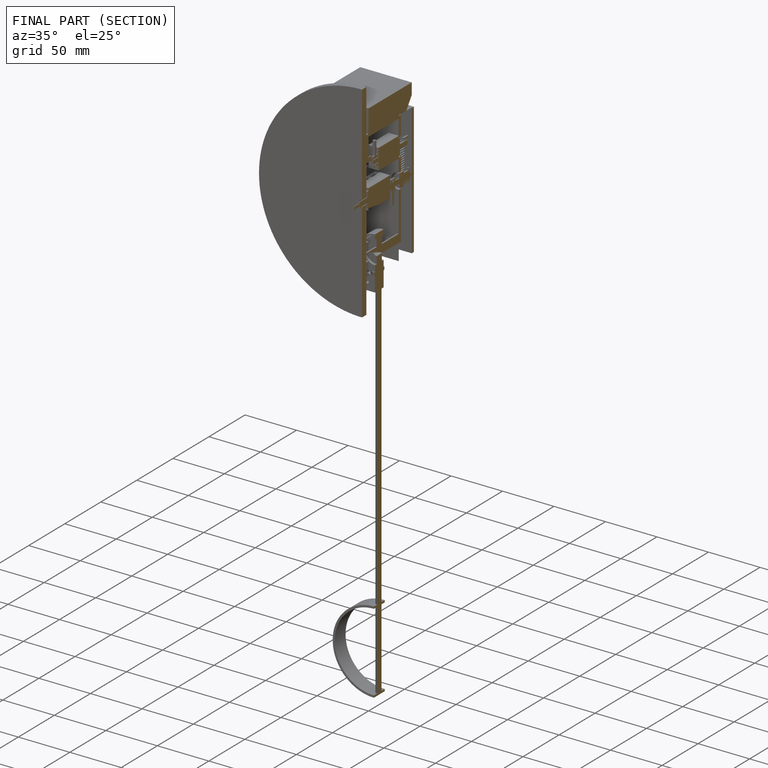
[diagram: finished part — half-section view (interior)]
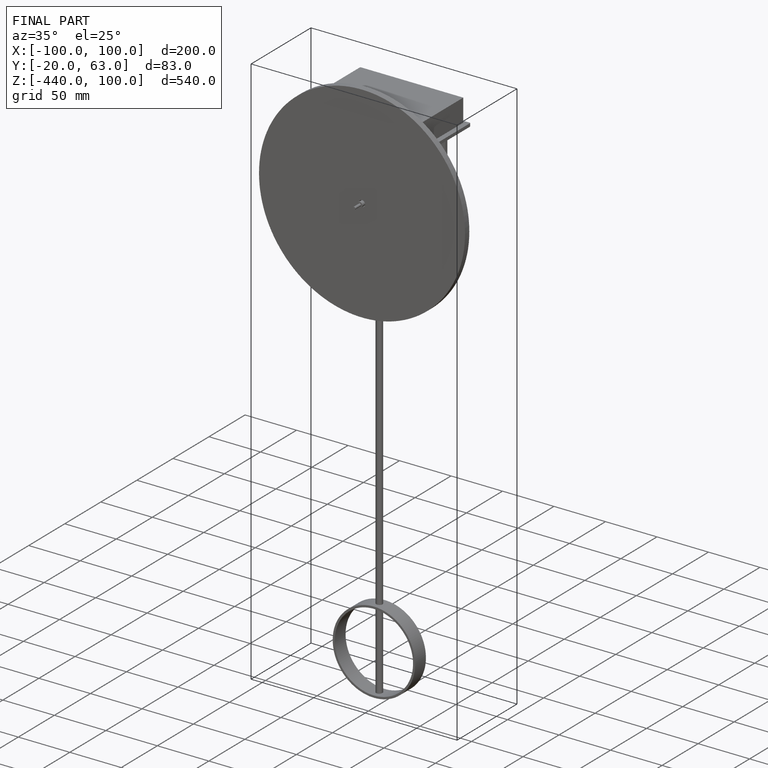
[diagram: finished part — iso view with bounding-box wireframe]
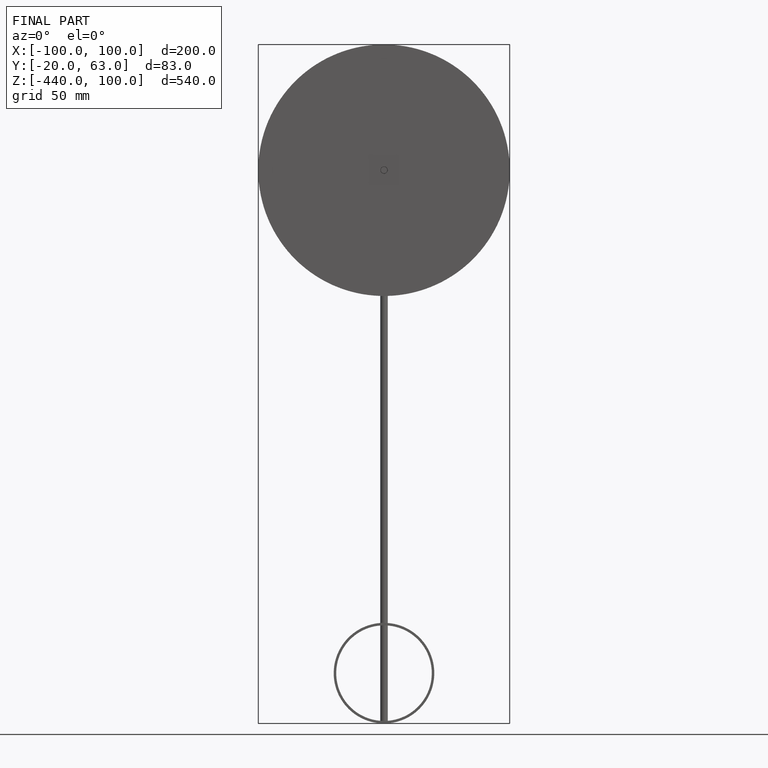
[diagram: finished part — front view with bounding-box wireframe]
